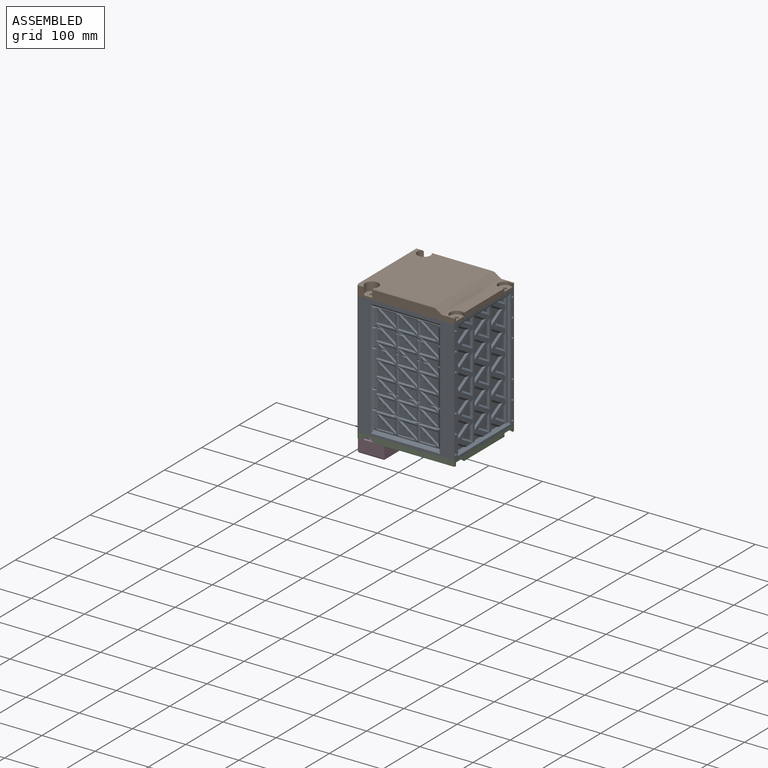
[diagram: assembled view]
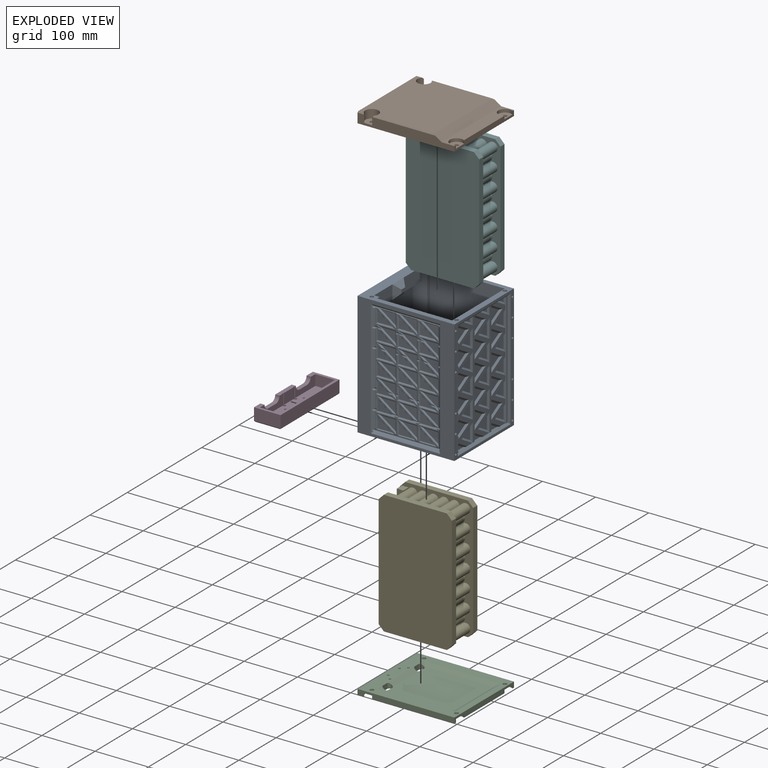
[diagram: exploded view]
GUIDED TOUR — FREECAD ASSEMBLY "BatteryMountPlate"

This assembly has 6 components, labeled P0..P5 below (a component is one placed body or linked part; the same part can appear more than once), held together by 0 modeled joints plus 7 derived contact edges. A joint is a constraint between two components; its type names the relative motion it leaves free:
  CONTACT — a derived adjacency edge — the two components touch in the source model (clearance under 2% of the assembly's diagonal); it is measured from the geometry, not a modeled constraint.
Axis/direction vectors are unit vectors and 'through' points are millimeter coordinates, both in the assembly's world frame.

MATES
  1. CONTACT "contact_0_1": P0 <-> P1, contact direction (0.000, 0.000, 1.000) through (-62.72, -2.28, 116.00) mm (derived from contact, not a modeled constraint)
  2. CONTACT "contact_0_2": P0 <-> P2, contact direction (0.000, 0.000, -1.000) through (97.85, 2.34, -116.00) mm (derived from contact, not a modeled constraint)
  3. CONTACT "contact_0_4": P0 <-> P4, contact direction (0.000, -1.000, 0.000) through (-48.75, 66.50, -106.05) mm (derived from contact, not a modeled constraint)
  4. CONTACT "contact_0_5": P0 <-> P5, contact direction (0.000, 1.000, 0.000) through (-47.25, 142.00, -104.55) mm (derived from contact, not a modeled constraint)
  5. CONTACT "contact_2_3": P2 <-> P3, contact direction (-1.000, 0.000, 0.000) through (-71.89, 144.09, -126.00) mm (derived from contact, not a modeled constraint)
  6. CONTACT "contact_2_4": P2 <-> P4, contact direction (0.000, 0.000, 1.000) through (82.17, 0.39, -118.00) mm (derived from contact, not a modeled constraint)
  7. CONTACT "contact_4_5": P4 <-> P5, contact direction (0.000, 1.000, 0.000) through (-47.50, 70.50, 106.10) mm (derived from contact, not a modeled constraint)

ASSEMBLY ORDER
  1. P0 — the base component [order verified]
  2. P5 [order verified]
  3. P4 [order verified]
  4. P2 [order verified]
  5. P3 [order verified]
  6. P1 [order verified]
Order-tag legend:
  [order verified] — this step's position reverses a verified removal order: the component was checked to insert without passing through the ones already placed.

Of the 6 components, 4 carry a construction recipe — the FreeCAD feature program (sketches with constraints, then the solid features that consume them) that regenerates the part from scratch, quoted from this document or from the linked companion document it references; the rest are supplied as boundary geometry only. The tour below walks the components in assembly order: each is shown spotlighted twice — in the assembled view, then in the exploded view, where a leader line traces a displaced component back to its assembled socket (components that stay in place when exploded have no leader line; saturated green if recipe-attached, orange if geometry-only; every other component desaturated gray) — followed by its recipe or geometry summary and the mates that hold it.
NOTE — this tour is split across 2 documents so each fits a 32k-token context. This is document 1: the component sections continue in the remaining 1 document, each repeating the header above.
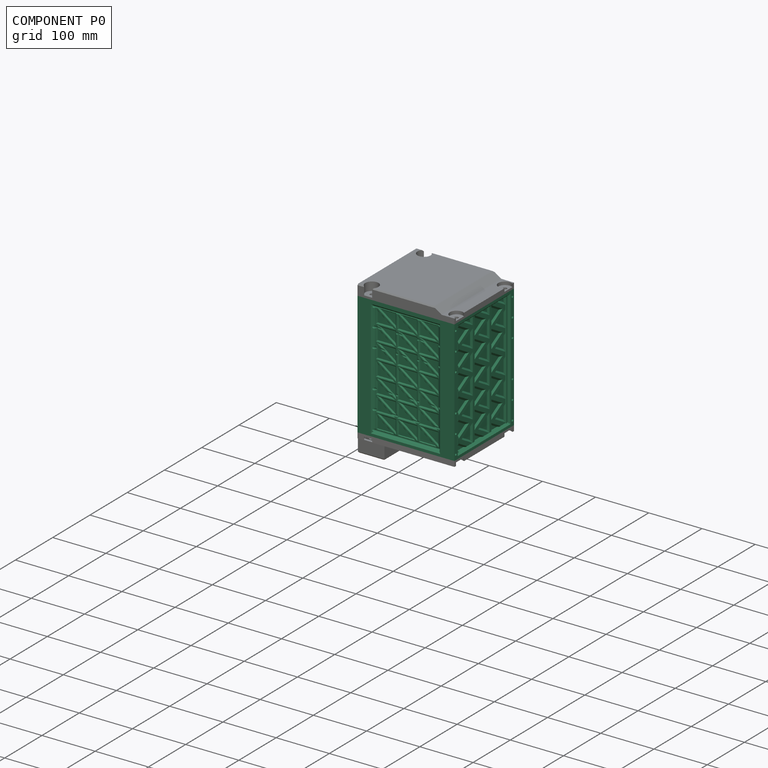
[diagram: component P0 — assembled]
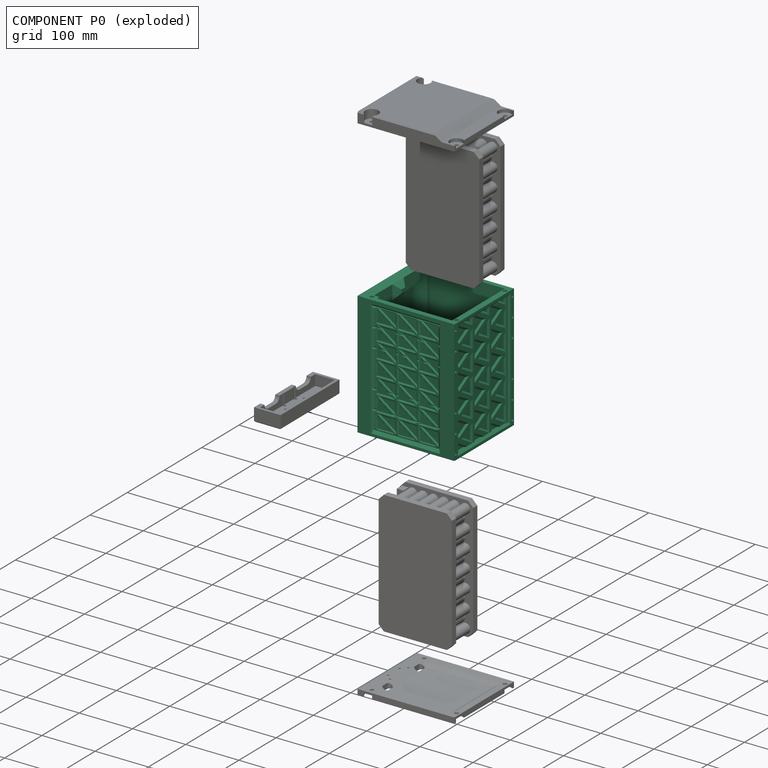
[diagram: component P0 — exploded]
COMPONENT P0 — recipe-attached ("ModuleBottomEnclosure", modeled in this document).
Held by: resting contact with P1 (derived edge); resting contact with P2 (derived edge); resting contact with P4 (derived edge); resting contact with P5 (derived edge).
Construction recipe (the document's own serialized feature program — sketch geometry with constraints, then the solid features built on it; lengths are millimeters unless a unit is written):

FEATURE [Sketcher::SketchObject] Sketch007
  ArcFitTolerance = 1e-06
  AttachmentSupport = -> [XY_Plane008]
  FullyConstrained = false
  MakeInternals = false
  MapMode = 5
  sketch-geometry (4):
    g0: LineSegment StartX=0 StartY=0 StartZ=0 EndX=182 EndY=0 EndZ=0
    g1: LineSegment StartX=182 StartY=0 StartZ=0 EndX=182 EndY=160 EndZ=0
    g2: LineSegment StartX=182 StartY=160 StartZ=0 EndX=0 EndY=160 EndZ=0
    g3: LineSegment StartX=0 StartY=160 StartZ=0 EndX=0 EndY=0 EndZ=0
  constraints (8):
    c: Coincident(g0,g1)
    c: Coincident(g1,g2)
    c: Coincident(g2,g3)
    c: Coincident(g3,g0)
    c: Horizontal(g0)
    c: Horizontal(g2)
    c: Vertical(g1)
    c: Vertical(g3)
FEATURE [PartDesign::Pad] Pad003
  Direction = (0,0,1)
  Length = 232
  Length2 = 10
  Profile = -> Sketch007
  ReferenceAxis = -> Sketch007 [N_Axis]
  Refine = true
  Suppressed = false
  Type = 0
FEATURE [Sketcher::SketchObject] Sketch008
  ArcFitTolerance = 1e-06
  AttachmentOffset = pos=(0,0,20) rot=(0,0,1;0rad)
  AttachmentSupport = -> [YZ_Plane008]
  FullyConstrained = false
  MakeInternals = false
  MapMode = 5
  Placement = pos=(20,0,0) rot=(0.57735,0.57735,0.57735;2.0944rad)
  sketch-geometry (8):
    g0: LineSegment StartX=95 StartY=0 StartZ=0 EndX=95 EndY=25 EndZ=0
    g1: LineSegment StartX=95 StartY=25 StartZ=0 EndX=65 EndY=25 EndZ=0
    g2: LineSegment StartX=65 StartY=25 StartZ=0 EndX=65 EndY=0 EndZ=0
    g3: LineSegment StartX=65 StartY=0 StartZ=0 EndX=95 EndY=0 EndZ=0
    g4: LineSegment StartX=95 StartY=205 StartZ=0 EndX=95 EndY=232 EndZ=0
    g5: LineSegment StartX=95 StartY=232 StartZ=0 EndX=65 EndY=232 EndZ=0
    g6: LineSegment StartX=65 StartY=232 StartZ=0 EndX=65 EndY=205 EndZ=0
    g7: LineSegment StartX=65 StartY=205 StartZ=0 EndX=95 EndY=205 EndZ=0
  constraints (16):
    c: Coincident(g0,g1)
    c: Coincident(g1,g2)
    c: Coincident(g2,g3)
    c: Coincident(g3,g0)
    c: Vertical(g0)
    c: Vertical(g2)
    c: Horizontal(g1)
    c: Horizontal(g3)
    c: Coincident(g4,g5)
    c: Coincident(g5,g6)
    c: Coincident(g6,g7)
    c: Coincident(g7,g4)
    c: Vertical(g4)
    c: Vertical(g6)
    c: Horizontal(g5)
    c: Horizontal(g7)
FEATURE [Sketcher::SketchObject] Sketch009
  ArcFitTolerance = 1e-06
  AttachmentSupport = -> [YZ_Plane008]
  FullyConstrained = false
  MakeInternals = false
  MapMode = 5
  Placement = pos=(0,0,0) rot=(0.57735,0.57735,0.57735;2.0944rad)
  sketch-geometry (8):
    g0: LineSegment StartX=10 StartY=232 StartZ=0 EndX=10 EndY=207 EndZ=0
    g1: LineSegment StartX=10 StartY=207 StartZ=0 EndX=150 EndY=207 EndZ=0
    g2: LineSegment StartX=150 StartY=207 StartZ=0 EndX=150 EndY=232 EndZ=0
    g3: LineSegment StartX=150 StartY=232 StartZ=0 EndX=10 EndY=232 EndZ=0
    g4: LineSegment StartX=151 StartY=0 StartZ=0 EndX=151 EndY=30 EndZ=0
    g5: LineSegment StartX=151 StartY=30 StartZ=0 EndX=10 EndY=30 EndZ=0
    g6: LineSegment StartX=10 StartY=30 StartZ=0 EndX=10 EndY=0 EndZ=0
    g7: LineSegment StartX=10 StartY=0 StartZ=0 EndX=151 EndY=0 EndZ=0
  constraints (16):
    c: Coincident(g0,g1)
    c: Coincident(g1,g2)
    c: Coincident(g2,g3)
    c: Coincident(g3,g0)
    c: Vertical(g0)
    c: Vertical(g2)
    c: Horizontal(g1)
    c: Horizontal(g3)
    c: Coincident(g4,g5)
    c: Coincident(g5,g6)
    c: Coincident(g6,g7)
    c: Coincident(g7,g4)
    c: Vertical(g4)
    c: Vertical(g6)
    c: Horizontal(g5)
    c: Horizontal(g7)
FEATURE [Sketcher::SketchObject] Sketch010
  ArcFitTolerance = 1e-06
  AttachmentSupport = -> [XY_Plane008]
  FullyConstrained = false
  MakeInternals = false
  MapMode = 5
  sketch-geometry (4):
    g0: Circle CenterX=20 CenterY=150 CenterZ=0 NormalX=0 NormalY=0 NormalZ=1 AngleXU=0 Radius=2.38649
    g1: Circle CenterX=20 CenterY=10 CenterZ=0 NormalX=0 NormalY=0 NormalZ=1 AngleXU=0 Radius=3.41984
    g2: Circle CenterX=175.5 CenterY=145 CenterZ=0 NormalX=0 NormalY=0 NormalZ=1 AngleXU=0 Radius=1.76253
    g3: Circle CenterX=175.5 CenterY=15 CenterZ=0 NormalX=0 NormalY=0 NormalZ=1 AngleXU=0 Radius=2.37061
FEATURE [Sketcher::SketchObject] Sketch011
  ArcFitTolerance = 1e-06
  AttachmentSupport = -> [YZ_Plane008]
  FullyConstrained = false
  MakeInternals = false
  MapMode = 5
  Placement = pos=(0,0,0) rot=(0.57735,0.57735,0.57735;2.0944rad)
  sketch-geometry (12):
    g0: Circle CenterX=156 CenterY=220 CenterZ=0 NormalX=0 NormalY=0 NormalZ=1 AngleXU=0 Radius=2.39766
    g1: Circle CenterX=156 CenterY=185 CenterZ=0 NormalX=0 NormalY=0 NormalZ=1 AngleXU=0 Radius=2.39766
    g2: Circle CenterX=156 CenterY=150 CenterZ=0 NormalX=0 NormalY=0 NormalZ=1 AngleXU=0 Radius=2.39766
    g3: Circle CenterX=156 CenterY=80 CenterZ=0 NormalX=0 NormalY=0 NormalZ=1 AngleXU=0 Radius=2.39766
    g4: Circle CenterX=156 CenterY=45 CenterZ=0 NormalX=0 NormalY=0 NormalZ=1 AngleXU=0 Radius=2.39766
    g5: Circle CenterX=156 CenterY=10 CenterZ=0 NormalX=0 NormalY=0 NormalZ=1 AngleXU=0 Radius=2.39766
    g6: Circle CenterX=4 CenterY=220 CenterZ=0 NormalX=0 NormalY=0 NormalZ=1 AngleXU=0 Radius=1.85567
    g7: Circle CenterX=4 CenterY=185 CenterZ=0 NormalX=0 NormalY=0 NormalZ=1 AngleXU=0 Radius=1.85567
    g8: Circle CenterX=4 CenterY=150 CenterZ=0 NormalX=0 NormalY=0 NormalZ=1 AngleXU=0 Radius=1.85567
    g9: Circle CenterX=4 CenterY=80 CenterZ=0 NormalX=0 NormalY=0 NormalZ=1 AngleXU=0 Radius=1.85567
    g10: Circle CenterX=4 CenterY=45 CenterZ=0 NormalX=0 NormalY=0 NormalZ=1 AngleXU=0 Radius=1.85567
    g11: Circle CenterX=4 CenterY=10 CenterZ=0 NormalX=0 NormalY=0 NormalZ=1 AngleXU=0 Radius=1.85567
FEATURE [Sketcher::SketchObject] Sketch015
  ArcFitTolerance = 1e-06
  AttachmentSupport = -> [XY_Plane008]
  FullyConstrained = false
  MakeInternals = false
  MapMode = 5
  sketch-geometry (8):
    g0: LineSegment StartX=171 StartY=151.4 StartZ=0 EndX=30 EndY=151.4 EndZ=0
    g1: LineSegment StartX=171 StartY=151.4 StartZ=0 EndX=171 EndY=9.7 EndZ=0
    g2: LineSegment StartX=171 StartY=9.7 StartZ=0 EndX=30 EndY=9.7 EndZ=0
    g3: LineSegment StartX=30 StartY=9.7 StartZ=0 EndX=30 EndY=16 EndZ=0
    g4: LineSegment StartX=30 StartY=151.4 StartZ=0 EndX=30 EndY=144 EndZ=0
    g5: LineSegment StartX=30 StartY=144 StartZ=0 EndX=3 EndY=144 EndZ=0
    g6: LineSegment StartX=3 StartY=144 StartZ=0 EndX=3 EndY=16 EndZ=0
    g7: LineSegment StartX=3 StartY=16 StartZ=0 EndX=30 EndY=16 EndZ=0
  constraints (16):
    c: Horizontal(g0)
    c: Coincident(g1,g0)
    c: Vertical(g1)
    c: Coincident(g2,g1)
    c: Horizontal(g2)
    c: Coincident(g3,g2)
    c: Vertical(g3)
    c: Coincident(g4,g0)
    c: Vertical(g4)
    c: Coincident(g5,g4)
    c: Horizontal(g5)
    c: Coincident(g6,g5)
    c: Vertical(g6)
    c: Coincident(g7,g6)
    c: Coincident(g7,g3)
    c: Horizontal(g7)
FEATURE [PartDesign::Pocket] Pocket001
  BaseFeature = -> Pad003
  Direction = (0,0,-1)
  Length = 300
  Length2 = 5
  Profile = -> Sketch015
  ReferenceAxis = -> Sketch015 [N_Axis]
  Refine = true
  Reversed = true
  Suppressed = false
  Type = 0
FEATURE [PartDesign::Pad] Pad004
  BaseFeature = -> Pocket001
  Direction = (1,0,0)
  Length = 20
  Length2 = 10
  Profile = -> Sketch009
  ReferenceAxis = -> Sketch009 [N_Axis]
  Refine = true
  Suppressed = false
  Type = 0
FEATURE [PartDesign::Pad] Pad005
  BaseFeature = -> Pad004
  Direction = (1,0,0)
  Length = 10
  Length2 = 10
  Profile = -> Sketch008
  ReferenceAxis = -> Sketch008 [N_Axis]
  Refine = true
  Suppressed = false
  TaperAngle = -45
  Type = 0
FEATURE [PartDesign::Hole] Hole003
  BaseFeature = -> Pad005
  CustomThreadClearance = 0
  Depth = 675.49
  DepthType = 1
  Diameter = 7.1
  DrillForDepth = false
  DrillPoint = 1
  DrillPointAngle = 118
  HoleCutCountersinkAngle = 90
  HoleCutCustomValues = false
  HoleCutDepth = 0
  HoleCutDiameter = 0
  HoleCutType = 0
  ModelThread = false
  Profile = -> Sketch010
  Refine = true
  Reversed = true
  Suppressed = false
  Tapered = false
  TaperedAngle = 90
  ThreadClass = 0
  ThreadDepth = 675.49
  ThreadDepthType = 0
  ThreadDirection = 0
  ThreadFit = 0
  ThreadSize = 9
  ThreadType = 3
  Threaded = false
  UseCustomThreadClearance = false
FEATURE [PartDesign::Hole] Hole004
  BaseFeature = -> Hole003
  CustomThreadClearance = 0
  Depth = 686.574
  DepthType = 1
  Diameter = 4.5
  DrillForDepth = false
  DrillPoint = 1
  DrillPointAngle = 118
  HoleCutCountersinkAngle = 90
  HoleCutCustomValues = false
  HoleCutDepth = 0
  HoleCutDiameter = 6.1
  HoleCutType = 0
  ModelThread = false
  Profile = -> Sketch011
  Refine = true
  Reversed = true
  Suppressed = false
  Tapered = false
  TaperedAngle = 90
  ThreadClass = 0
  ThreadDepth = 686.574
  ThreadDepthType = 0
  ThreadDirection = 0
  ThreadFit = 0
  ThreadSize = 8
  ThreadType = 3
  Threaded = true
  UseCustomThreadClearance = false
FEATURE [Sketcher::SketchObject] Sketch026
  ArcFitTolerance = 1e-06
  AttachmentOffset = pos=(0,0,178) rot=(0,0,1;0rad)
  AttachmentSupport = -> [YZ_Plane008]
  FullyConstrained = false
  MakeInternals = false
  MapMode = 5
  Placement = pos=(178,0,0) rot=(0.57735,0.57735,0.57735;2.0944rad)
  sketch-geometry (138):
    g0: Circle [constr] CenterX=35 CenterY=206 CenterZ=0 NormalX=0 NormalY=0 NormalZ=1 AngleXU=0 Radius=20
    g1: LineSegment StartX=45 StartY=206 StartZ=0 EndX=15 EndY=223.321 EndZ=0
    g2: LineSegment StartX=15 StartY=223.321 StartZ=0 EndX=15 EndY=188.679 EndZ=0
    g3: LineSegment StartX=15 StartY=188.679 StartZ=0 EndX=45 EndY=206 EndZ=0
    g4: Circle [constr] CenterX=35 CenterY=166 CenterZ=0 NormalX=0 NormalY=0 NormalZ=1 AngleXU=0 Radius=20
    g5: LineSegment StartX=45 StartY=166 StartZ=0 EndX=15 EndY=183.321 EndZ=0
    g6: LineSegment StartX=15 StartY=183.321 StartZ=0 EndX=15 EndY=148.679 EndZ=0
    g7: LineSegment StartX=15 StartY=148.679 StartZ=0 EndX=45 EndY=166 EndZ=0
    g8: LineSegment StartX=25 StartY=186 StartZ=0 EndX=55 EndY=168.679 EndZ=0
    g9: LineSegment StartX=55 StartY=168.679 StartZ=0 EndX=55 EndY=203.321 EndZ=0
    g10: LineSegment StartX=55 StartY=203.321 StartZ=0 EndX=25 EndY=186 EndZ=0
    g11: Circle [constr] CenterX=45 CenterY=186 CenterZ=0 NormalX=0 NormalY=0 NormalZ=1 AngleXU=0 Radius=20
    g12: LineSegment StartX=25 StartY=146 StartZ=0 EndX=55 EndY=128.679 EndZ=0
    g13: LineSegment StartX=55 StartY=128.679 StartZ=0 EndX=55 EndY=163.321 EndZ=0
    g14: LineSegment StartX=55 StartY=163.321 StartZ=0 EndX=25 EndY=146 EndZ=0
    g15: Circle [constr] CenterX=45 CenterY=146 CenterZ=0 NormalX=0 NormalY=0 NormalZ=1 AngleXU=0 Radius=20
    g16: Circle [constr] CenterX=35 CenterY=126 CenterZ=0 NormalX=0 NormalY=0 NormalZ=1 AngleXU=0 Radius=20
    g17: LineSegment StartX=45 StartY=126 StartZ=0 EndX=15 EndY=143.321 EndZ=0
    g18: LineSegment StartX=15 StartY=143.321 StartZ=0 EndX=15 EndY=108.679 EndZ=0
    g19: LineSegment StartX=15 StartY=108.679 StartZ=0 EndX=45 EndY=126 EndZ=0
    g20: Circle [constr] CenterX=35 CenterY=86 CenterZ=0 NormalX=0 NormalY=0 NormalZ=1 AngleXU=0 Radius=20
    g21: LineSegment StartX=45 StartY=86 StartZ=0 EndX=15 EndY=103.321 EndZ=0
    g22: LineSegment StartX=15 StartY=103.321 StartZ=0 EndX=15 EndY=68.6795 EndZ=0
    g23: LineSegment StartX=15 StartY=68.6795 StartZ=0 EndX=45 EndY=86 EndZ=0
    g24: LineSegment StartX=25 StartY=106 StartZ=0 EndX=55 EndY=88.6795 EndZ=0
    g25: LineSegment StartX=55 StartY=88.6795 StartZ=0 EndX=55 EndY=123.321 EndZ=0
    g26: LineSegment StartX=55 StartY=123.321 StartZ=0 EndX=25 EndY=106 EndZ=0
    g27: Circle [constr] CenterX=45 CenterY=106 CenterZ=0 NormalX=0 NormalY=0 NormalZ=1 AngleXU=0 Radius=20
    g28: LineSegment StartX=25 StartY=66 StartZ=0 EndX=55 EndY=48.6795 EndZ=0
    g29: LineSegment StartX=55 StartY=48.6795 StartZ=0 EndX=55 EndY=83.3205 EndZ=0
    g30: LineSegment StartX=55 StartY=83.3205 StartZ=0 EndX=25 EndY=66 EndZ=0
    g31: Circle [constr] CenterX=45 CenterY=66 CenterZ=0 NormalX=0 NormalY=0 NormalZ=1 AngleXU=0 Radius=20
    g32: Circle [constr] CenterX=35 CenterY=46 CenterZ=0 NormalX=0 NormalY=0 NormalZ=1 AngleXU=0 Radius=20
    g33: LineSegment StartX=45 StartY=46 StartZ=0 EndX=15 EndY=63.3205 EndZ=0
    g34: LineSegment StartX=15 StartY=63.3205 StartZ=0 EndX=15 EndY=28.6795 EndZ=0
    g35: LineSegment StartX=15 StartY=28.6795 StartZ=0 EndX=45 EndY=46 EndZ=0
    g36: LineSegment StartX=55 StartY=43.3205 StartZ=0 EndX=25 EndY=26 EndZ=0
    g37: LineSegment StartX=55 StartY=8.67949 StartZ=0 EndX=55 EndY=43.3205 EndZ=0
    g38: LineSegment StartX=25 StartY=26 StartZ=0 EndX=55 EndY=8.67949 EndZ=0
    g39: Circle [constr] CenterX=45 CenterY=26 CenterZ=0 NormalX=0 NormalY=0 NormalZ=1 AngleXU=0 Radius=20
    g40: Circle [constr] CenterX=80 CenterY=206 CenterZ=0 NormalX=0 NormalY=0 NormalZ=1 AngleXU=0 Radius=20
    g41: LineSegment StartX=90 StartY=206 StartZ=0 EndX=60 EndY=223.321 EndZ=0
    g42: LineSegment StartX=60 StartY=223.321 StartZ=0 EndX=60 EndY=188.679 EndZ=0
    g43: LineSegment StartX=60 StartY=188.679 StartZ=0 EndX=90 EndY=206 EndZ=0
    g44: Circle [constr] CenterX=80 CenterY=166 CenterZ=0 NormalX=0 NormalY=0 NormalZ=1 AngleXU=0 Radius=20
    g45: LineSegment StartX=90 StartY=166 StartZ=0 EndX=60 EndY=183.321 EndZ=0
    g46: LineSegment StartX=60 StartY=183.321 StartZ=0 EndX=60 EndY=148.679 EndZ=0
    g47: LineSegment StartX=60 StartY=148.679 StartZ=0 EndX=90 EndY=166 EndZ=0
    g48: LineSegment StartX=70 StartY=186 StartZ=0 EndX=100 EndY=168.679 EndZ=0
    g49: LineSegment StartX=100 StartY=168.679 StartZ=0 EndX=100 EndY=203.321 EndZ=0
    g50: LineSegment StartX=100 StartY=203.321 StartZ=0 EndX=70 EndY=186 EndZ=0
    g51: Circle [constr] CenterX=90 CenterY=186 CenterZ=0 NormalX=0 NormalY=0 NormalZ=1 AngleXU=0 Radius=20
    g52: LineSegment StartX=70 StartY=146 StartZ=0 EndX=100 EndY=128.679 EndZ=0
    g53: LineSegment StartX=100 StartY=128.679 StartZ=0 EndX=100 EndY=163.321 EndZ=0
    g54: LineSegment StartX=100 StartY=163.321 StartZ=0 EndX=70 EndY=146 EndZ=0
    g55: Circle [constr] CenterX=90 CenterY=146 CenterZ=0 NormalX=0 NormalY=0 NormalZ=1 AngleXU=0 Radius=20
    g56: Circle [constr] CenterX=80 CenterY=126 CenterZ=0 NormalX=0 NormalY=0 NormalZ=1 AngleXU=0 Radius=20
    g57: LineSegment StartX=90 StartY=126 StartZ=0 EndX=60 EndY=143.321 EndZ=0
    g58: LineSegment StartX=60 StartY=143.321 StartZ=0 EndX=60 EndY=108.679 EndZ=0
    g59: LineSegment StartX=60 StartY=108.679 StartZ=0 EndX=90 EndY=126 EndZ=0
    g60: Circle [constr] CenterX=80 CenterY=86 CenterZ=0 NormalX=0 NormalY=0 NormalZ=1 AngleXU=0 Radius=20
    g61: LineSegment StartX=90 StartY=86 StartZ=0 EndX=60 EndY=103.321 EndZ=0
    g62: LineSegment StartX=60 StartY=103.321 StartZ=0 EndX=60 EndY=68.6795 EndZ=0
    g63: LineSegment StartX=60 StartY=68.6795 StartZ=0 EndX=90 EndY=86 EndZ=0
    g64: LineSegment StartX=70 StartY=106 StartZ=0 EndX=100 EndY=88.6795 EndZ=0
    g65: LineSegment StartX=100 StartY=88.6795 StartZ=0 EndX=100 EndY=123.321 EndZ=0
    g66: LineSegment StartX=100 StartY=123.321 StartZ=0 EndX=70 EndY=106 EndZ=0
    g67: Circle [constr] CenterX=90 CenterY=106 CenterZ=0 NormalX=0 NormalY=0 NormalZ=1 AngleXU=0 Radius=20
    g68: LineSegment StartX=70 StartY=66 StartZ=0 EndX=100 EndY=48.6795 EndZ=0
    g69: LineSegment StartX=100 StartY=48.6795 StartZ=0 EndX=100 EndY=83.3205 EndZ=0
    g70: LineSegment StartX=100 StartY=83.3205 StartZ=0 EndX=70 EndY=66 EndZ=0
    g71: Circle [constr] CenterX=90 CenterY=66 CenterZ=0 NormalX=0 NormalY=0 NormalZ=1 AngleXU=0 Radius=20
    g72: Circle [constr] CenterX=80 CenterY=46 CenterZ=0 NormalX=0 NormalY=0 NormalZ=1 AngleXU=0 Radius=20
    g73: LineSegment StartX=90 StartY=46 StartZ=0 EndX=60 EndY=63.3205 EndZ=0
    g74: LineSegment StartX=60 StartY=63.3205 StartZ=0 EndX=60 EndY=28.6795 EndZ=0
    g75: LineSegment StartX=60 StartY=28.6795 StartZ=0 EndX=90 EndY=46 EndZ=0
    g76: LineSegment StartX=100 StartY=43.3205 StartZ=0 EndX=70 EndY=26 EndZ=0
    g77: LineSegment StartX=100 StartY=8.67949 StartZ=0 EndX=100 EndY=43.3205 EndZ=0
    g78: LineSegment StartX=70 StartY=26 StartZ=0 EndX=100 EndY=8.67949 EndZ=0
    g79: Circle [constr] CenterX=90 CenterY=26 CenterZ=0 NormalX=0 NormalY=0 NormalZ=1 AngleXU=0 Radius=20
    g80: Circle [constr] CenterX=125 CenterY=206 CenterZ=0 NormalX=0 NormalY=0 NormalZ=1 AngleXU=0 Radius=20
    g81: LineSegment StartX=135 StartY=206 StartZ=0 EndX=105 EndY=223.321 EndZ=0
    g82: LineSegment StartX=105 StartY=223.321 StartZ=0 EndX=105 EndY=188.679 EndZ=0
    g83: LineSegment StartX=105 StartY=188.679 StartZ=0 EndX=135 EndY=206 EndZ=0
    g84: Circle [constr] CenterX=125 CenterY=166 CenterZ=0 NormalX=0 NormalY=0 NormalZ=1 AngleXU=0 Radius=20
    g85: LineSegment StartX=135 StartY=166 StartZ=0 EndX=105 EndY=183.321 EndZ=0
    g86: LineSegment StartX=105 StartY=183.321 StartZ=0 EndX=105 EndY=148.679 EndZ=0
    g87: LineSegment StartX=105 StartY=148.679 StartZ=0 EndX=135 EndY=166 EndZ=0
    g88: LineSegment StartX=115 StartY=186 StartZ=0 EndX=145 EndY=168.679 EndZ=0
    g89: LineSegment StartX=145 StartY=168.679 StartZ=0 EndX=145 EndY=203.321 EndZ=0
    g90: LineSegment StartX=145 StartY=203.321 StartZ=0 EndX=115 EndY=186 EndZ=0
    g91: Circle [constr] CenterX=135 CenterY=186 CenterZ=0 NormalX=0 NormalY=0 NormalZ=1 AngleXU=0 Radius=20
    g92: LineSegment StartX=115 StartY=146 StartZ=0 EndX=145 EndY=128.679 EndZ=0
    g93: LineSegment StartX=145 StartY=128.679 StartZ=0 EndX=145 EndY=163.321 EndZ=0
    g94: LineSegment StartX=145 StartY=163.321 StartZ=0 EndX=115 EndY=146 EndZ=0
    g95: Circle [constr] CenterX=135 CenterY=146 CenterZ=0 NormalX=0 NormalY=0 NormalZ=1 AngleXU=0 Radius=20
    g96: Circle [constr] CenterX=125 CenterY=126 CenterZ=0 NormalX=0 NormalY=0 NormalZ=1 AngleXU=0 Radius=20
    g97: LineSegment StartX=135 StartY=126 StartZ=0 EndX=105 EndY=143.321 EndZ=0
    g98: LineSegment StartX=105 StartY=143.321 StartZ=0 EndX=105 EndY=108.679 EndZ=0
    g99: LineSegment StartX=105 StartY=108.679 StartZ=0 EndX=135 EndY=126 EndZ=0
    g100: Circle [constr] CenterX=125 CenterY=86 CenterZ=0 NormalX=0 NormalY=0 NormalZ=1 AngleXU=0 Radius=20
    g101: LineSegment StartX=135 StartY=86 StartZ=0 EndX=105 EndY=103.321 EndZ=0
    g102: LineSegment StartX=105 StartY=103.321 StartZ=0 EndX=105 EndY=68.6795 EndZ=0
    g103: LineSegment StartX=105 StartY=68.6795 StartZ=0 EndX=135 EndY=86 EndZ=0
    g104: LineSegment StartX=115 StartY=106 StartZ=0 EndX=145 EndY=88.6795 EndZ=0
    g105: LineSegment StartX=145 StartY=88.6795 StartZ=0 EndX=145 EndY=123.321 EndZ=0
    g106: LineSegment StartX=145 StartY=123.321 StartZ=0 EndX=115 EndY=106 EndZ=0
    g107: Circle [constr] CenterX=135 CenterY=106 CenterZ=0 NormalX=0 NormalY=0 NormalZ=1 AngleXU=0 Radius=20
    g108: LineSegment StartX=115 StartY=66 StartZ=0 EndX=145 EndY=48.6795 EndZ=0
    g109: LineSegment StartX=145 StartY=48.6795 StartZ=0 EndX=145 EndY=83.3205 EndZ=0
    g110: LineSegment StartX=145 StartY=83.3205 StartZ=0 EndX=115 EndY=66 EndZ=0
    g111: Circle [constr] CenterX=135 CenterY=66 CenterZ=0 NormalX=0 NormalY=0 NormalZ=1 AngleXU=0 Radius=20
    g112: Circle [constr] CenterX=125 CenterY=46 CenterZ=0 NormalX=0 NormalY=0 NormalZ=1 AngleXU=0 Radius=20
    g113: LineSegment StartX=135 StartY=46 StartZ=0 EndX=105 EndY=63.3205 EndZ=0
    g114: LineSegment StartX=105 StartY=63.3205 StartZ=0 EndX=105 EndY=28.6795 EndZ=0
    g115: LineSegment StartX=105 StartY=28.6795 StartZ=0 EndX=135 EndY=46 EndZ=0
    g116: LineSegment StartX=145 StartY=43.3205 StartZ=0 EndX=115 EndY=26 EndZ=0
    g117: LineSegment StartX=145 StartY=8.67949 StartZ=0 EndX=145 EndY=43.3205 EndZ=0
    g118: LineSegment StartX=115 StartY=26 StartZ=0 EndX=145 EndY=8.67949 EndZ=0
    g119: Circle [constr] CenterX=135 CenterY=26 CenterZ=0 NormalX=0 NormalY=0 NormalZ=1 AngleXU=0 Radius=20
    g120: LineSegment StartX=55 StartY=226 StartZ=0 EndX=25 EndY=226 EndZ=0
    g121: LineSegment StartX=100 StartY=226 StartZ=0 EndX=70 EndY=226 EndZ=0
    g122: LineSegment StartX=145 StartY=226 StartZ=0 EndX=115 EndY=226 EndZ=0
    g123: LineSegment StartX=25 StartY=226 StartZ=0 EndX=55 EndY=208.679 EndZ=0
    g124: LineSegment StartX=55 StartY=208.679 StartZ=0 EndX=55 EndY=226 EndZ=0
    g125: LineSegment StartX=70 StartY=226 StartZ=0 EndX=100 EndY=208.679 EndZ=0
    g126: LineSegment StartX=100 StartY=208.679 StartZ=0 EndX=100 EndY=226 EndZ=0
    g127: LineSegment StartX=115 StartY=226 StartZ=0 EndX=145 EndY=208.679 EndZ=0
    g128: LineSegment StartX=145 StartY=208.679 StartZ=0 EndX=145 EndY=226 EndZ=0
    g129: LineSegment StartX=90 StartY=6 StartZ=0 EndX=60 EndY=23.3205 EndZ=0
    g130: LineSegment StartX=60 StartY=6 StartZ=0 EndX=90 EndY=6 EndZ=0
    g131: LineSegment StartX=60 StartY=23.3205 StartZ=0 EndX=60 EndY=6 EndZ=0
    g132: LineSegment StartX=15 StartY=6 StartZ=0 EndX=45 EndY=6 EndZ=0
    g133: LineSegment StartX=45 StartY=6 StartZ=0 EndX=15 EndY=23.3205 EndZ=0
    g134: LineSegment StartX=15 StartY=23.3205 StartZ=0 EndX=15 EndY=6 EndZ=0
    g135: LineSegment StartX=105 StartY=23.3205 StartZ=0 EndX=105 EndY=6 EndZ=0
    g136: LineSegment StartX=105 StartY=6 StartZ=0 EndX=135 EndY=6 EndZ=0
    g137: LineSegment StartX=135 StartY=6 StartZ=0 EndX=105 EndY=23.3205 EndZ=0
  constraints (213):
    c: Coincident(g1,g2)
    c: Coincident(g2,g3)
    c: Coincident(g3,g1)
    c: Equal(g1,g2)
    c: Equal(g1,g3)
    c: Coincident(g5,g6)
    c: Coincident(g6,g7)
    c: Coincident(g7,g5)
    c: Equal(g5,g6)
    c: Equal(g5,g7)
    c: Coincident(g8,g9)
    c: Coincident(g9,g10)
    c: Coincident(g10,g8)
    c: Equal(g8,g9)
    c: Equal(g8,g10)
    c: PointOnObject(g8,g11)
    c: PointOnObject(g9,g11)
    c: PointOnObject(g10,g11)
    c: Coincident(g12,g13)
    c: Coincident(g13,g14)
    c: Coincident(g14,g12)
    c: Equal(g12,g13)
    c: Equal(g12,g14)
    c: PointOnObject(g12,g15)
    c: PointOnObject(g13,g15)
    c: PointOnObject(g14,g15)
    c: Coincident(g17,g18)
    c: Coincident(g18,g19)
    c: Coincident(g19,g17)
    c: Equal(g17,g18)
    c: Equal(g17,g19)
    c: Coincident(g21,g22)
    c: Coincident(g22,g23)
    c: Coincident(g23,g21)
    c: Equal(g21,g22)
    c: Equal(g21,g23)
    c: Coincident(g24,g25)
    c: Coincident(g25,g26)
    c: Coincident(g26,g24)
    c: Equal(g24,g25)
    c: Equal(g24,g26)
    c: PointOnObject(g24,g27)
    c: PointOnObject(g25,g27)
    c: PointOnObject(g26,g27)
    c: Coincident(g28,g29)
    c: Coincident(g29,g30)
    c: Coincident(g30,g28)
    c: Equal(g28,g29)
    c: Equal(g28,g30)
    c: PointOnObject(g28,g31)
    c: PointOnObject(g29,g31)
    c: PointOnObject(g30,g31)
    c: Coincident(g33,g34)
    c: Coincident(g34,g35)
    c: Coincident(g35,g33)
    c: Equal(g33,g34)
    c: Equal(g33,g35)
    c: Coincident(g38,g37)
    c: Coincident(g37,g36)
    c: Coincident(g36,g38)
    c: Equal(g38,g37)
    c: Equal(g38,g36)
    c: PointOnObject(g38,g39)
    c: PointOnObject(g37,g39)
    c: PointOnObject(g36,g39)
    c: Coincident(g41,g42)
    c: Coincident(g42,g43)
    c: Coincident(g43,g41)
    c: Equal(g41,g42)
    c: Equal(g41,g43)
    c: Coincident(g45,g46)
    c: Coincident(g46,g47)
    c: Coincident(g47,g45)
    c: Equal(g45,g46)
    c: Equal(g45,g47)
    c: Coincident(g48,g49)
    c: Coincident(g49,g50)
    c: Coincident(g50,g48)
    c: Equal(g48,g49)
    c: Equal(g48,g50)
    c: PointOnObject(g48,g51)
    c: PointOnObject(g49,g51)
    c: PointOnObject(g50,g51)
    c: Coincident(g52,g53)
    c: Coincident(g53,g54)
    c: Coincident(g54,g52)
    c: Equal(g52,g53)
    c: Equal(g52,g54)
    c: PointOnObject(g52,g55)
    c: PointOnObject(g53,g55)
    c: PointOnObject(g54,g55)
    c: Coincident(g57,g58)
    c: Coincident(g58,g59)
    c: Coincident(g59,g57)
    c: Equal(g57,g58)
    c: Equal(g57,g59)
    c: Coincident(g61,g62)
    c: Coincident(g62,g63)
    c: Coincident(g63,g61)
    c: Equal(g61,g62)
    c: Equal(g61,g63)
    c: Coincident(g64,g65)
    c: Coincident(g65,g66)
    c: Coincident(g66,g64)
    c: Equal(g64,g65)
    c: Equal(g64,g66)
    c: PointOnObject(g64,g67)
    c: PointOnObject(g65,g67)
    c: PointOnObject(g66,g67)
    c: Coincident(g68,g69)
    c: Coincident(g69,g70)
    c: Coincident(g70,g68)
    c: Equal(g68,g69)
    c: Equal(g68,g70)
    c: PointOnObject(g68,g71)
    c: PointOnObject(g69,g71)
    c: PointOnObject(g70,g71)
    c: Coincident(g73,g74)
    c: Coincident(g74,g75)
    c: Coincident(g75,g73)
    c: Equal(g73,g74)
    c: Equal(g73,g75)
    c: Coincident(g78,g77)
    c: Coincident(g77,g76)
    c: Coincident(g76,g78)
    c: Equal(g78,g77)
    c: Equal(g78,g76)
    c: PointOnObject(g78,g79)
    c: PointOnObject(g77,g79)
    c: PointOnObject(g76,g79)
    c: Coincident(g81,g82)
    c: Coincident(g82,g83)
    c: Coincident(g83,g81)
    c: Equal(g81,g82)
    c: Equal(g81,g83)
    c: Coincident(g85,g86)
    c: Coincident(g86,g87)
    c: Coincident(g87,g85)
    c: Equal(g85,g86)
    c: Equal(g85,g87)
    c: Coincident(g88,g89)
    c: Coincident(g89,g90)
    c: Coincident(g90,g88)
    c: Equal(g88,g89)
    c: Equal(g88,g90)
    c: PointOnObject(g88,g91)
    c: PointOnObject(g89,g91)
    c: PointOnObject(g90,g91)
    c: Coincident(g92,g93)
    c: Coincident(g93,g94)
    c: Coincident(g94,g92)
    c: Equal(g92,g93)
    c: Equal(g92,g94)
    c: PointOnObject(g92,g95)
    c: PointOnObject(g93,g95)
    c: PointOnObject(g94,g95)
    c: Coincident(g97,g98)
    c: Coincident(g98,g99)
    c: Coincident(g99,g97)
    c: Equal(g97,g98)
    c: Equal(g97,g99)
    c: Coincident(g101,g102)
    c: Coincident(g102,g103)
    c: Coincident(g103,g101)
    c: Equal(g101,g102)
    c: Equal(g101,g103)
    c: Coincident(g104,g105)
    c: Coincident(g105,g106)
    c: Coincident(g106,g104)
    c: Equal(g104,g105)
    c: Equal(g104,g106)
    c: PointOnObject(g104,g107)
    c: PointOnObject(g105,g107)
    c: PointOnObject(g106,g107)
    c: Coincident(g108,g109)
    c: Coincident(g109,g110)
    c: Coincident(g110,g108)
    c: Equal(g108,g109)
    c: Equal(g108,g110)
    c: PointOnObject(g108,g111)
    c: PointOnObject(g109,g111)
    c: PointOnObject(g110,g111)
    c: Coincident(g113,g114)
    c: Coincident(g114,g115)
    c: Coincident(g115,g113)
    c: Equal(g113,g114)
    c: Equal(g113,g115)
    c: Coincident(g118,g117)
    c: Coincident(g117,g116)
    c: Coincident(g116,g118)
    c: Equal(g118,g117)
    c: Equal(g118,g116)
    c: PointOnObject(g118,g119)
    c: PointOnObject(g117,g119)
    c: PointOnObject(g116,g119)
    c: Coincident(g123,g124)
    c: Coincident(g124,g120)
    c: Coincident(g120,g123)
    c: Coincident(g125,g126)
    c: Coincident(g126,g121)
    c: Coincident(g121,g125)
    c: Coincident(g127,g128)
    c: Coincident(g128,g122)
    c: Coincident(g122,g127)
    c: Coincident(g133,g134)
    c: Coincident(g134,g132)
    c: Coincident(g132,g133)
    c: Coincident(g129,g131)
    c: Coincident(g131,g130)
    c: Coincident(g130,g129)
    c: Coincident(g137,g135)
    c: Coincident(g135,g136)
    c: Coincident(g136,g137)
FEATURE [PartDesign::Pocket] Pocket008
  BaseFeature = -> Hole004
  Direction = (-1,0,0)
  Length = 3
  Length2 = 5
  Profile = -> Sketch026
  ReferenceAxis = -> Sketch026 [N_Axis]
  Refine = true
  Suppressed = false
  TaperAngle = -45
  Type = 0
FEATURE [Sketcher::SketchObject] Sketch027
  ArcFitTolerance = 1e-06
  AttachmentOffset = pos=(0,0,183) rot=(0,0,1;0rad)
  AttachmentSupport = -> [YZ_Plane008]
  FullyConstrained = false
  MakeInternals = false
  MapMode = 5
  Placement = pos=(183,0,0) rot=(0.57735,0.57735,0.57735;2.0944rad)
  sketch-geometry (4):
    g0: LineSegment StartX=8 StartY=228 StartZ=0 EndX=8 EndY=4 EndZ=0
    g1: LineSegment StartX=8 StartY=4 StartZ=0 EndX=152 EndY=4 EndZ=0
    g2: LineSegment StartX=152 StartY=4 StartZ=0 EndX=152 EndY=228 EndZ=0
    g3: LineSegment StartX=152 StartY=228 StartZ=0 EndX=8 EndY=228 EndZ=0
  constraints (8):
    c: Coincident(g0,g1)
    c: Coincident(g1,g2)
    c: Coincident(g2,g3)
    c: Coincident(g3,g0)
    c: Vertical(g0)
    c: Vertical(g2)
    c: Horizontal(g1)
    c: Horizontal(g3)
FEATURE [PartDesign::Pocket] Pocket009
  BaseFeature = -> Pocket008
  Direction = (-1,0,0)
  Length = 5
  Length2 = 5
  Profile = -> Sketch027
  ReferenceAxis = -> Sketch027 [N_Axis]
  Refine = true
  Suppressed = false
  TaperAngle = -45
  Type = 0
FEATURE [Sketcher::SketchObject] Sketch028
  ArcFitTolerance = 1e-06
  AttachmentOffset = pos=(10,0,-5) rot=(0,0,1;0rad)
  AttachmentSupport = -> [XZ_Plane008]
  FullyConstrained = false
  MakeInternals = false
  MapMode = 5
  Placement = pos=(10,5,-1.1e-15) rot=(1,0,0;1.5708rad)
  sketch-geometry (126):
    g0: LineSegment StartX=23 StartY=219 StartZ=0 EndX=59 EndY=219 EndZ=0
    g1: LineSegment StartX=59 StartY=219 StartZ=0 EndX=59 EndY=193 EndZ=0
    g2: LineSegment StartX=59 StartY=193 StartZ=0 EndX=23 EndY=219 EndZ=0
    g3: LineSegment StartX=57 StartY=191 StartZ=0 EndX=21 EndY=191 EndZ=0
    g4: LineSegment StartX=21 StartY=191 StartZ=0 EndX=21 EndY=217 EndZ=0
    g5: LineSegment StartX=21 StartY=217 StartZ=0 EndX=57 EndY=191 EndZ=0
    g6: LineSegment StartX=63 StartY=219 StartZ=0 EndX=99 EndY=219 EndZ=0
    g7: LineSegment StartX=99 StartY=219 StartZ=0 EndX=99 EndY=193 EndZ=0
    g8: LineSegment StartX=99 StartY=193 StartZ=0 EndX=63 EndY=219 EndZ=0
    g9: LineSegment StartX=97 StartY=191 StartZ=0 EndX=61 EndY=191 EndZ=0
    g10: LineSegment StartX=61 StartY=191 StartZ=0 EndX=61 EndY=217 EndZ=0
    g11: LineSegment StartX=61 StartY=217 StartZ=0 EndX=97 EndY=191 EndZ=0
    g12: LineSegment StartX=103 StartY=219 StartZ=0 EndX=139 EndY=219 EndZ=0
    g13: LineSegment StartX=139 StartY=219 StartZ=0 EndX=139 EndY=193 EndZ=0
    g14: LineSegment StartX=139 StartY=193 StartZ=0 EndX=103 EndY=219 EndZ=0
    g15: LineSegment StartX=137 StartY=191 StartZ=0 EndX=101 EndY=191 EndZ=0
    g16: LineSegment StartX=101 StartY=191 StartZ=0 EndX=101 EndY=217 EndZ=0
    g17: LineSegment StartX=101 StartY=217 StartZ=0 EndX=137 EndY=191 EndZ=0
    g18: LineSegment StartX=23 StartY=189 StartZ=0 EndX=59 EndY=189 EndZ=0
    g19: LineSegment StartX=59 StartY=189 StartZ=0 EndX=59 EndY=163 EndZ=0
    g20: LineSegment StartX=59 StartY=163 StartZ=0 EndX=23 EndY=189 EndZ=0
    g21: LineSegment StartX=57 StartY=161 StartZ=0 EndX=21 EndY=161 EndZ=0
    g22: LineSegment StartX=21 StartY=161 StartZ=0 EndX=21 EndY=187 EndZ=0
    g23: LineSegment StartX=21 StartY=187 StartZ=0 EndX=57 EndY=161 EndZ=0
    g24: LineSegment StartX=63 StartY=189 StartZ=0 EndX=99 EndY=189 EndZ=0
    g25: LineSegment StartX=99 StartY=189 StartZ=0 EndX=99 EndY=163 EndZ=0
    g26: LineSegment StartX=99 StartY=163 StartZ=0 EndX=63 EndY=189 EndZ=0
    g27: LineSegment StartX=97 StartY=161 StartZ=0 EndX=61 EndY=161 EndZ=0
    g28: LineSegment StartX=61 StartY=161 StartZ=0 EndX=61 EndY=187 EndZ=0
    g29: LineSegment StartX=61 StartY=187 StartZ=0 EndX=97 EndY=161 EndZ=0
    g30: LineSegment StartX=103 StartY=189 StartZ=0 EndX=139 EndY=189 EndZ=0
    g31: LineSegment StartX=139 StartY=189 StartZ=0 EndX=139 EndY=163 EndZ=0
    g32: LineSegment StartX=139 StartY=163 StartZ=0 EndX=103 EndY=189 EndZ=0
    g33: LineSegment StartX=137 StartY=161 StartZ=0 EndX=101 EndY=161 EndZ=0
    g34: LineSegment StartX=101 StartY=161 StartZ=0 EndX=101 EndY=187 EndZ=0
    g35: LineSegment StartX=101 StartY=187 StartZ=0 EndX=137 EndY=161 EndZ=0
    g36: LineSegment StartX=23 StartY=159 StartZ=0 EndX=59 EndY=159 EndZ=0
    g37: LineSegment StartX=59 StartY=159 StartZ=0 EndX=59 EndY=133 EndZ=0
    g38: LineSegment StartX=59 StartY=133 StartZ=0 EndX=23 EndY=159 EndZ=0
    g39: LineSegment StartX=57 StartY=131 StartZ=0 EndX=21 EndY=131 EndZ=0
    g40: LineSegment StartX=21 StartY=131 StartZ=0 EndX=21 EndY=157 EndZ=0
    g41: LineSegment StartX=21 StartY=157 StartZ=0 EndX=57 EndY=131 EndZ=0
    g42: LineSegment StartX=63 StartY=159 StartZ=0 EndX=99 EndY=159 EndZ=0
    g43: LineSegment StartX=99 StartY=159 StartZ=0 EndX=99 EndY=133 EndZ=0
    g44: LineSegment StartX=99 StartY=133 StartZ=0 EndX=63 EndY=159 EndZ=0
    g45: LineSegment StartX=97 StartY=131 StartZ=0 EndX=61 EndY=131 EndZ=0
    g46: LineSegment StartX=61 StartY=131 StartZ=0 EndX=61 EndY=157 EndZ=0
    g47: LineSegment StartX=61 StartY=157 StartZ=0 EndX=97 EndY=131 EndZ=0
    g48: LineSegment StartX=103 StartY=159 StartZ=0 EndX=139 EndY=159 EndZ=0
    g49: LineSegment StartX=139 StartY=159 StartZ=0 EndX=139 EndY=133 EndZ=0
    g50: LineSegment StartX=139 StartY=133 StartZ=0 EndX=103 EndY=159 EndZ=0
    g51: LineSegment StartX=137 StartY=131 StartZ=0 EndX=101 EndY=131 EndZ=0
    g52: LineSegment StartX=101 StartY=131 StartZ=0 EndX=101 EndY=157 EndZ=0
    g53: LineSegment StartX=101 StartY=157 StartZ=0 EndX=137 EndY=131 EndZ=0
    g54: LineSegment StartX=23 StartY=129 StartZ=0 EndX=59 EndY=129 EndZ=0
    g55: LineSegment StartX=59 StartY=129 StartZ=0 EndX=59 EndY=103 EndZ=0
    g56: LineSegment StartX=59 StartY=103 StartZ=0 EndX=23 EndY=129 EndZ=0
    g57: LineSegment StartX=57 StartY=101 StartZ=0 EndX=21 EndY=101 EndZ=0
    g58: LineSegment StartX=21 StartY=101 StartZ=0 EndX=21 EndY=127 EndZ=0
    g59: LineSegment StartX=21 StartY=127 StartZ=0 EndX=57 EndY=101 EndZ=0
    g60: LineSegment StartX=63 StartY=129 StartZ=0 EndX=99 EndY=129 EndZ=0
    g61: LineSegment StartX=99 StartY=129 StartZ=0 EndX=99 EndY=103 EndZ=0
    g62: LineSegment StartX=99 StartY=103 StartZ=0 EndX=63 EndY=129 EndZ=0
    g63: LineSegment StartX=97 StartY=101 StartZ=0 EndX=61 EndY=101 EndZ=0
    g64: LineSegment StartX=61 StartY=101 StartZ=0 EndX=61 EndY=127 EndZ=0
    g65: LineSegment StartX=61 StartY=127 StartZ=0 EndX=97 EndY=101 EndZ=0
    g66: LineSegment StartX=103 StartY=129 StartZ=0 EndX=139 EndY=129 EndZ=0
    g67: LineSegment StartX=139 StartY=129 StartZ=0 EndX=139 EndY=103 EndZ=0
    g68: LineSegment StartX=139 StartY=103 StartZ=0 EndX=103 EndY=129 EndZ=0
    g69: LineSegment StartX=137 StartY=101 StartZ=0 EndX=101 EndY=101 EndZ=0
    g70: LineSegment StartX=101 StartY=101 StartZ=0 EndX=101 EndY=127 EndZ=0
    g71: LineSegment StartX=101 StartY=127 StartZ=0 EndX=137 EndY=101 EndZ=0
    g72: LineSegment StartX=23 StartY=99 StartZ=0 EndX=59 EndY=99 EndZ=0
    g73: LineSegment StartX=59 StartY=99 StartZ=0 EndX=59 EndY=73 EndZ=0
    g74: LineSegment StartX=59 StartY=73 StartZ=0 EndX=23 EndY=99 EndZ=0
    g75: LineSegment StartX=57 StartY=71 StartZ=0 EndX=21 EndY=71 EndZ=0
    g76: LineSegment StartX=21 StartY=71 StartZ=0 EndX=21 EndY=97 EndZ=0
    g77: LineSegment StartX=21 StartY=97 StartZ=0 EndX=57 EndY=71 EndZ=0
    g78: LineSegment StartX=63 StartY=99 StartZ=0 EndX=99 EndY=99 EndZ=0
    g79: LineSegment StartX=99 StartY=99 StartZ=0 EndX=99 EndY=73 EndZ=0
    g80: LineSegment StartX=99 StartY=73 StartZ=0 EndX=63 EndY=99 EndZ=0
    g81: LineSegment StartX=97 StartY=71 StartZ=0 EndX=61 EndY=71 EndZ=0
    g82: LineSegment StartX=61 StartY=71 StartZ=0 EndX=61 EndY=97 EndZ=0
    g83: LineSegment StartX=61 StartY=97 StartZ=0 EndX=97 EndY=71 EndZ=0
    g84: LineSegment StartX=103 StartY=99 StartZ=0 EndX=139 EndY=99 EndZ=0
    g85: LineSegment StartX=139 StartY=99 StartZ=0 EndX=139 EndY=73 EndZ=0
    g86: LineSegment StartX=139 StartY=73 StartZ=0 EndX=103 EndY=99 EndZ=0
    g87: LineSegment StartX=137 StartY=71 StartZ=0 EndX=101 EndY=71 EndZ=0
    g88: LineSegment StartX=101 StartY=71 StartZ=0 EndX=101 EndY=97 EndZ=0
    g89: LineSegment StartX=101 StartY=97 StartZ=0 EndX=137 EndY=71 EndZ=0
    g90: LineSegment StartX=23 StartY=69 StartZ=0 EndX=59 EndY=69 EndZ=0
    g91: LineSegment StartX=59 StartY=69 StartZ=0 EndX=59 EndY=43 EndZ=0
    g92: LineSegment StartX=59 StartY=43 StartZ=0 EndX=23 EndY=69 EndZ=0
    g93: LineSegment StartX=57 StartY=41 StartZ=0 EndX=21 EndY=41 EndZ=0
    g94: LineSegment StartX=21 StartY=41 StartZ=0 EndX=21 EndY=67 EndZ=0
    g95: LineSegment StartX=21 StartY=67 StartZ=0 EndX=57 EndY=41 EndZ=0
    g96: LineSegment StartX=63 StartY=69 StartZ=0 EndX=99 EndY=69 EndZ=0
    g97: LineSegment StartX=99 StartY=69 StartZ=0 EndX=99 EndY=43 EndZ=0
    g98: LineSegment StartX=99 StartY=43 StartZ=0 EndX=63 EndY=69 EndZ=0
    g99: LineSegment StartX=97 StartY=41 StartZ=0 EndX=61 EndY=41 EndZ=0
    g100: LineSegment StartX=61 StartY=41 StartZ=0 EndX=61 EndY=67 EndZ=0
    g101: LineSegment StartX=61 StartY=67 StartZ=0 EndX=97 EndY=41 EndZ=0
    g102: LineSegment StartX=103 StartY=69 StartZ=0 EndX=139 EndY=69 EndZ=0
    g103: LineSegment StartX=139 StartY=69 StartZ=0 EndX=139 EndY=43 EndZ=0
    g104: LineSegment StartX=139 StartY=43 StartZ=0 EndX=103 EndY=69 EndZ=0
    g105: LineSegment StartX=137 StartY=41 StartZ=0 EndX=101 EndY=41 EndZ=0
    g106: LineSegment StartX=101 StartY=41 StartZ=0 EndX=101 EndY=67 EndZ=0
    g107: LineSegment StartX=101 StartY=67 StartZ=0 EndX=137 EndY=41 EndZ=0
    g108: LineSegment StartX=23 StartY=39 StartZ=0 EndX=59 EndY=39 EndZ=0
    g109: LineSegment StartX=59 StartY=39 StartZ=0 EndX=59 EndY=13 EndZ=0
    g110: LineSegment StartX=59 StartY=13 StartZ=0 EndX=23 EndY=39 EndZ=0
    g111: LineSegment StartX=57 StartY=11 StartZ=0 EndX=21 EndY=11 EndZ=0
    g112: LineSegment StartX=21 StartY=11 StartZ=0 EndX=21 EndY=37 EndZ=0
    g113: LineSegment StartX=21 StartY=37 StartZ=0 EndX=57 EndY=11 EndZ=0
    g114: LineSegment StartX=63 StartY=39 StartZ=0 EndX=99 EndY=39 EndZ=0
    g115: LineSegment StartX=99 StartY=39 StartZ=0 EndX=99 EndY=13 EndZ=0
    g116: LineSegment StartX=99 StartY=13 StartZ=0 EndX=63 EndY=39 EndZ=0
    g117: LineSegment StartX=97 StartY=11 StartZ=0 EndX=61 EndY=11 EndZ=0
    g118: LineSegment StartX=61 StartY=11 StartZ=0 EndX=61 EndY=37 EndZ=0
    g119: LineSegment StartX=61 StartY=37 StartZ=0 EndX=97 EndY=11 EndZ=0
    g120: LineSegment StartX=103 StartY=39 StartZ=0 EndX=139 EndY=39 EndZ=0
    g121: LineSegment StartX=139 StartY=39 StartZ=0 EndX=139 EndY=13 EndZ=0
    g122: LineSegment StartX=139 StartY=13 StartZ=0 EndX=103 EndY=39 EndZ=0
    g123: LineSegment StartX=137 StartY=11 StartZ=0 EndX=101 EndY=11 EndZ=0
    g124: LineSegment StartX=101 StartY=11 StartZ=0 EndX=101 EndY=37 EndZ=0
    g125: LineSegment StartX=101 StartY=37 StartZ=0 EndX=137 EndY=11 EndZ=0
  constraints (210):
    c: Horizontal(g0)
    c: Coincident(g1,g0)
    c: Vertical(g1)
    c: Coincident(g2,g1)
    c: Coincident(g2,g0)
    c: Coincident(g3,g5)
    c: Horizontal(g3)
    c: Coincident(g4,g3)
    c: Coincident(g4,g5)
    c: Vertical(g4)
    c: Horizontal(g6)
    c: Horizontal(g12)
    c: Coincident(g7,g6)
    c: Coincident(g13,g12)
    c: Vertical(g7)
    c: Vertical(g13)
    c: Coincident(g8,g7)
    c: Coincident(g14,g13)
    c: Coincident(g8,g6)
    c: Coincident(g14,g12)
    c: Coincident(g9,g11)
    c: Coincident(g15,g17)
    c: Horizontal(g9)
    c: Horizontal(g15)
    c: Coincident(g10,g9)
    c: Coincident(g16,g15)
    c: Coincident(g10,g11)
    c: Coincident(g16,g17)
    c: Vertical(g10)
    c: Vertical(g16)
    c: Horizontal(g18)
    c: Horizontal(g36)
    c: Horizontal(g54)
    c: Horizontal(g72)
    c: Horizontal(g90)
    c: Horizontal(g108)
    c: Coincident(g19,g18)
    c: Coincident(g37,g36)
    c: Coincident(g55,g54)
    c: Coincident(g73,g72)
    c: Coincident(g91,g90)
    c: Coincident(g109,g108)
    c: Vertical(g19)
    c: Vertical(g37)
    c: Vertical(g55)
    c: Vertical(g73)
    c: Vertical(g91)
    c: Vertical(g109)
    c: Coincident(g20,g19)
    c: Coincident(g38,g37)
    c: Coincident(g56,g55)
    c: Coincident(g74,g73)
    c: Coincident(g92,g91)
    c: Coincident(g110,g109)
    c: Coincident(g20,g18)
    c: Coincident(g38,g36)
    c: Coincident(g56,g54)
    c: Coincident(g74,g72)
    c: Coincident(g92,g90)
    c: Coincident(g110,g108)
    c: Coincident(g21,g23)
    c: Coincident(g39,g41)
    c: Coincident(g57,g59)
    c: Coincident(g75,g77)
    c: Coincident(g93,g95)
    c: Coincident(g111,g113)
    c: Horizontal(g21)
    c: Horizontal(g39)
    c: Horizontal(g57)
    c: Horizontal(g75)
    c: Horizontal(g93)
    c: Horizontal(g111)
    c: Coincident(g22,g21)
    c: Coincident(g40,g39)
    c: Coincident(g58,g57)
    c: Coincident(g76,g75)
    c: Coincident(g94,g93)
    c: Coincident(g112,g111)
    c: Coincident(g22,g23)
    c: Coincident(g40,g41)
    c: Coincident(g58,g59)
    c: Coincident(g76,g77)
    c: Coincident(g94,g95)
    c: Coincident(g112,g113)
    c: Vertical(g22)
    c: Vertical(g40)
    c: Vertical(g58)
    c: Vertical(g76)
    c: Vertical(g94)
    c: Vertical(g112)
    c: Horizontal(g24)
    c: Horizontal(g42)
    c: Horizontal(g60)
    c: Horizontal(g78)
    c: Horizontal(g96)
    c: Horizontal(g114)
    c: Horizontal(g30)
    c: Horizontal(g48)
    c: Horizontal(g66)
    c: Horizontal(g84)
    c: Horizontal(g102)
    c: Horizontal(g120)
    c: Coincident(g25,g24)
    c: Coincident(g43,g42)
    c: Coincident(g61,g60)
    c: Coincident(g79,g78)
    c: Coincident(g97,g96)
    c: Coincident(g115,g114)
    c: Coincident(g31,g30)
    c: Coincident(g49,g48)
    c: Coincident(g67,g66)
    c: Coincident(g85,g84)
    c: Coincident(g103,g102)
    c: Coincident(g121,g120)
    c: Vertical(g25)
    c: Vertical(g43)
    c: Vertical(g61)
    c: Vertical(g79)
    c: Vertical(g97)
    c: Vertical(g115)
    c: Vertical(g31)
    c: Vertical(g49)
    c: Vertical(g67)
    c: Vertical(g85)
    c: Vertical(g103)
    c: Vertical(g121)
    c: Coincident(g26,g25)
    c: Coincident(g44,g43)
    c: Coincident(g62,g61)
    c: Coincident(g80,g79)
    c: Coincident(g98,g97)
    c: Coincident(g116,g115)
    c: Coincident(g32,g31)
    c: Coincident(g50,g49)
    c: Coincident(g68,g67)
    c: Coincident(g86,g85)
    c: Coincident(g104,g103)
    c: Coincident(g122,g121)
    c: Coincident(g26,g24)
    c: Coincident(g44,g42)
    c: Coincident(g62,g60)
    c: Coincident(g80,g78)
    c: Coincident(g98,g96)
    c: Coincident(g116,g114)
    c: Coincident(g32,g30)
    c: Coincident(g50,g48)
    c: Coincident(g68,g66)
    c: Coincident(g86,g84)
    c: Coincident(g104,g102)
    c: Coincident(g122,g120)
    c: Coincident(g27,g29)
    c: Coincident(g45,g47)
    c: Coincident(g63,g65)
    c: Coincident(g81,g83)
    c: Coincident(g99,g101)
    c: Coincident(g117,g119)
    c: Coincident(g33,g35)
    c: Coincident(g51,g53)
    c: Coincident(g69,g71)
    c: Coincident(g87,g89)
    c: Coincident(g105,g107)
    c: Coincident(g123,g125)
    c: Horizontal(g27)
    c: Horizontal(g45)
    c: Horizontal(g63)
    c: Horizontal(g81)
    c: Horizontal(g99)
    c: Horizontal(g117)
    c: Horizontal(g33)
    c: Horizontal(g51)
    c: Horizontal(g69)
    c: Horizontal(g87)
    c: Horizontal(g105)
    c: Horizontal(g123)
    c: Coincident(g28,g27)
    c: Coincident(g46,g45)
    c: Coincident(g64,g63)
    c: Coincident(g82,g81)
    c: Coincident(g100,g99)
    c: Coincident(g118,g117)
    c: Coincident(g34,g33)
    c: Coincident(g52,g51)
    c: Coincident(g70,g69)
    c: Coincident(g88,g87)
    c: Coincident(g106,g105)
    c: Coincident(g124,g123)
    c: Coincident(g28,g29)
    c: Coincident(g46,g47)
    c: Coincident(g64,g65)
    c: Coincident(g82,g83)
    c: Coincident(g100,g101)
    c: Coincident(g118,g119)
    c: Coincident(g34,g35)
    c: Coincident(g52,g53)
    c: Coincident(g70,g71)
    c: Coincident(g88,g89)
    c: Coincident(g106,g107)
    c: Coincident(g124,g125)
    c: Vertical(g28)
    c: Vertical(g46)
    c: Vertical(g64)
    c: Vertical(g82)
    c: Vertical(g100)
    c: Vertical(g118)
    c: Vertical(g34)
    c: Vertical(g52)
    c: Vertical(g70)
    c: Vertical(g88)
    c: Vertical(g106)
    c: Vertical(g124)
FEATURE [PartDesign::Pocket] Pocket010
  BaseFeature = -> Pocket009
  Direction = (0,1,-2e-16)
  Length = 2
  Length2 = 5
  Profile = -> Sketch028
  ReferenceAxis = -> Sketch028 [N_Axis]
  Refine = true
  Suppressed = false
  TaperAngle = -45
  Type = 0
FEATURE [Sketcher::SketchObject] Sketch029
  ArcFitTolerance = 1e-06
  AttachmentSupport = -> [XZ_Plane008]
  FullyConstrained = false
  MakeInternals = false
  MapMode = 5
  Placement = pos=(0,0,0) rot=(1,0,0;1.5708rad)
  sketch-geometry (4):
    g0: LineSegment StartX=25 StartY=225 StartZ=0 EndX=25 EndY=5 EndZ=0
    g1: LineSegment StartX=25 StartY=5 StartZ=0 EndX=155 EndY=5 EndZ=0
    g2: LineSegment StartX=155 StartY=5 StartZ=0 EndX=155 EndY=225 EndZ=0
    g3: LineSegment StartX=155 StartY=225 StartZ=0 EndX=25 EndY=225 EndZ=0
  constraints (8):
    c: Coincident(g0,g1)
    c: Coincident(g1,g2)
    c: Coincident(g2,g3)
    c: Coincident(g3,g0)
    c: Vertical(g0)
    c: Vertical(g2)
    c: Horizontal(g1)
    c: Horizontal(g3)
FEATURE [PartDesign::Pocket] Pocket011
  BaseFeature = -> Pocket010
  Direction = (0,1,-2e-16)
  Length = 5
  Length2 = 5
  Profile = -> Sketch029
  ReferenceAxis = -> Sketch029 [N_Axis]
  Refine = true
  Suppressed = false
  TaperAngle = -45
  Type = 0
FEATURE [Sketcher::SketchObject] Sketch030
  ArcFitTolerance = 1e-06
  AttachmentOffset = pos=(10,0,-155) rot=(0,0,1;0rad)
  AttachmentSupport = -> [XZ_Plane008]
  FullyConstrained = false
  MakeInternals = false
  MapMode = 5
  Placement = pos=(10,155,-3.44e-14) rot=(1,0,0;1.5708rad)
  sketch-geometry (126):
    g0: LineSegment StartX=23 StartY=219 StartZ=0 EndX=59 EndY=219 EndZ=0
    g1: LineSegment StartX=59 StartY=219 StartZ=0 EndX=59 EndY=193 EndZ=0
    g2: LineSegment StartX=59 StartY=193 StartZ=0 EndX=23 EndY=219 EndZ=0
    g3: LineSegment StartX=57 StartY=191 StartZ=0 EndX=21 EndY=191 EndZ=0
    g4: LineSegment StartX=21 StartY=191 StartZ=0 EndX=21 EndY=217 EndZ=0
    g5: LineSegment StartX=21 StartY=217 StartZ=0 EndX=57 EndY=191 EndZ=0
    g6: LineSegment StartX=63 StartY=219 StartZ=0 EndX=99 EndY=219 EndZ=0
    g7: LineSegment StartX=99 StartY=219 StartZ=0 EndX=99 EndY=193 EndZ=0
    g8: LineSegment StartX=99 StartY=193 StartZ=0 EndX=63 EndY=219 EndZ=0
    g9: LineSegment StartX=97 StartY=191 StartZ=0 EndX=61 EndY=191 EndZ=0
    g10: LineSegment StartX=61 StartY=191 StartZ=0 EndX=61 EndY=217 EndZ=0
    g11: LineSegment StartX=61 StartY=217 StartZ=0 EndX=97 EndY=191 EndZ=0
    g12: LineSegment StartX=103 StartY=219 StartZ=0 EndX=139 EndY=219 EndZ=0
    g13: LineSegment StartX=139 StartY=219 StartZ=0 EndX=139 EndY=193 EndZ=0
    g14: LineSegment StartX=139 StartY=193 StartZ=0 EndX=103 EndY=219 EndZ=0
    g15: LineSegment StartX=137 StartY=191 StartZ=0 EndX=101 EndY=191 EndZ=0
    g16: LineSegment StartX=101 StartY=191 StartZ=0 EndX=101 EndY=217 EndZ=0
    g17: LineSegment StartX=101 StartY=217 StartZ=0 EndX=137 EndY=191 EndZ=0
    g18: LineSegment StartX=23 StartY=189 StartZ=0 EndX=59 EndY=189 EndZ=0
    g19: LineSegment StartX=59 StartY=189 StartZ=0 EndX=59 EndY=163 EndZ=0
    g20: LineSegment StartX=59 StartY=163 StartZ=0 EndX=23 EndY=189 EndZ=0
    g21: LineSegment StartX=57 StartY=161 StartZ=0 EndX=21 EndY=161 EndZ=0
    g22: LineSegment StartX=21 StartY=161 StartZ=0 EndX=21 EndY=187 EndZ=0
    g23: LineSegment StartX=21 StartY=187 StartZ=0 EndX=57 EndY=161 EndZ=0
    g24: LineSegment StartX=63 StartY=189 StartZ=0 EndX=99 EndY=189 EndZ=0
    g25: LineSegment StartX=99 StartY=189 StartZ=0 EndX=99 EndY=163 EndZ=0
    g26: LineSegment StartX=99 StartY=163 StartZ=0 EndX=63 EndY=189 EndZ=0
    g27: LineSegment StartX=97 StartY=161 StartZ=0 EndX=61 EndY=161 EndZ=0
    g28: LineSegment StartX=61 StartY=161 StartZ=0 EndX=61 EndY=187 EndZ=0
    g29: LineSegment StartX=61 StartY=187 StartZ=0 EndX=97 EndY=161 EndZ=0
    g30: LineSegment StartX=103 StartY=189 StartZ=0 EndX=139 EndY=189 EndZ=0
    g31: LineSegment StartX=139 StartY=189 StartZ=0 EndX=139 EndY=163 EndZ=0
    g32: LineSegment StartX=139 StartY=163 StartZ=0 EndX=103 EndY=189 EndZ=0
    g33: LineSegment StartX=137 StartY=161 StartZ=0 EndX=101 EndY=161 EndZ=0
    g34: LineSegment StartX=101 StartY=161 StartZ=0 EndX=101 EndY=187 EndZ=0
    g35: LineSegment StartX=101 StartY=187 StartZ=0 EndX=137 EndY=161 EndZ=0
    g36: LineSegment StartX=23 StartY=159 StartZ=0 EndX=59 EndY=159 EndZ=0
    g37: LineSegment StartX=59 StartY=159 StartZ=0 EndX=59 EndY=133 EndZ=0
    g38: LineSegment StartX=59 StartY=133 StartZ=0 EndX=23 EndY=159 EndZ=0
    g39: LineSegment StartX=57 StartY=131 StartZ=0 EndX=21 EndY=131 EndZ=0
    g40: LineSegment StartX=21 StartY=131 StartZ=0 EndX=21 EndY=157 EndZ=0
    g41: LineSegment StartX=21 StartY=157 StartZ=0 EndX=57 EndY=131 EndZ=0
    g42: LineSegment StartX=63 StartY=159 StartZ=0 EndX=99 EndY=159 EndZ=0
    g43: LineSegment StartX=99 StartY=159 StartZ=0 EndX=99 EndY=133 EndZ=0
    g44: LineSegment StartX=99 StartY=133 StartZ=0 EndX=63 EndY=159 EndZ=0
    g45: LineSegment StartX=97 StartY=131 StartZ=0 EndX=61 EndY=131 EndZ=0
    g46: LineSegment StartX=61 StartY=131 StartZ=0 EndX=61 EndY=157 EndZ=0
    g47: LineSegment StartX=61 StartY=157 StartZ=0 EndX=97 EndY=131 EndZ=0
    g48: LineSegment StartX=103 StartY=159 StartZ=0 EndX=139 EndY=159 EndZ=0
    g49: LineSegment StartX=139 StartY=159 StartZ=0 EndX=139 EndY=133 EndZ=0
    g50: LineSegment StartX=139 StartY=133 StartZ=0 EndX=103 EndY=159 EndZ=0
    g51: LineSegment StartX=137 StartY=131 StartZ=0 EndX=101 EndY=131 EndZ=0
    g52: LineSegment StartX=101 StartY=131 StartZ=0 EndX=101 EndY=157 EndZ=0
    g53: LineSegment StartX=101 StartY=157 StartZ=0 EndX=137 EndY=131 EndZ=0
    g54: LineSegment StartX=23 StartY=129 StartZ=0 EndX=59 EndY=129 EndZ=0
    g55: LineSegment StartX=59 StartY=129 StartZ=0 EndX=59 EndY=103 EndZ=0
    g56: LineSegment StartX=59 StartY=103 StartZ=0 EndX=23 EndY=129 EndZ=0
    g57: LineSegment StartX=57 StartY=101 StartZ=0 EndX=21 EndY=101 EndZ=0
    g58: LineSegment StartX=21 StartY=101 StartZ=0 EndX=21 EndY=127 EndZ=0
    g59: LineSegment StartX=21 StartY=127 StartZ=0 EndX=57 EndY=101 EndZ=0
    g60: LineSegment StartX=63 StartY=129 StartZ=0 EndX=99 EndY=129 EndZ=0
    g61: LineSegment StartX=99 StartY=129 StartZ=0 EndX=99 EndY=103 EndZ=0
    g62: LineSegment StartX=99 StartY=103 StartZ=0 EndX=63 EndY=129 EndZ=0
    g63: LineSegment StartX=97 StartY=101 StartZ=0 EndX=61 EndY=101 EndZ=0
    g64: LineSegment StartX=61 StartY=101 StartZ=0 EndX=61 EndY=127 EndZ=0
    g65: LineSegment StartX=61 StartY=127 StartZ=0 EndX=97 EndY=101 EndZ=0
    g66: LineSegment StartX=103 StartY=129 StartZ=0 EndX=139 EndY=129 EndZ=0
    g67: LineSegment StartX=139 StartY=129 StartZ=0 EndX=139 EndY=103 EndZ=0
    g68: LineSegment StartX=139 StartY=103 StartZ=0 EndX=103 EndY=129 EndZ=0
    g69: LineSegment StartX=137 StartY=101 StartZ=0 EndX=101 EndY=101 EndZ=0
    g70: LineSegment StartX=101 StartY=101 StartZ=0 EndX=101 EndY=127 EndZ=0
    g71: LineSegment StartX=101 StartY=127 StartZ=0 EndX=137 EndY=101 EndZ=0
    g72: LineSegment StartX=23 StartY=99 StartZ=0 EndX=59 EndY=99 EndZ=0
    g73: LineSegment StartX=59 StartY=99 StartZ=0 EndX=59 EndY=73 EndZ=0
    g74: LineSegment StartX=59 StartY=73 StartZ=0 EndX=23 EndY=99 EndZ=0
    g75: LineSegment StartX=57 StartY=71 StartZ=0 EndX=21 EndY=71 EndZ=0
    g76: LineSegment StartX=21 StartY=71 StartZ=0 EndX=21 EndY=97 EndZ=0
    g77: LineSegment StartX=21 StartY=97 StartZ=0 EndX=57 EndY=71 EndZ=0
    g78: LineSegment StartX=63 StartY=99 StartZ=0 EndX=99 EndY=99 EndZ=0
    g79: LineSegment StartX=99 StartY=99 StartZ=0 EndX=99 EndY=73 EndZ=0
    g80: LineSegment StartX=99 StartY=73 StartZ=0 EndX=63 EndY=99 EndZ=0
    g81: LineSegment StartX=97 StartY=71 StartZ=0 EndX=61 EndY=71 EndZ=0
    g82: LineSegment StartX=61 StartY=71 StartZ=0 EndX=61 EndY=97 EndZ=0
    g83: LineSegment StartX=61 StartY=97 StartZ=0 EndX=97 EndY=71 EndZ=0
    g84: LineSegment StartX=103 StartY=99 StartZ=0 EndX=139 EndY=99 EndZ=0
    g85: LineSegment StartX=139 StartY=99 StartZ=0 EndX=139 EndY=73 EndZ=0
    g86: LineSegment StartX=139 StartY=73 StartZ=0 EndX=103 EndY=99 EndZ=0
    g87: LineSegment StartX=137 StartY=71 StartZ=0 EndX=101 EndY=71 EndZ=0
    g88: LineSegment StartX=101 StartY=71 StartZ=0 EndX=101 EndY=97 EndZ=0
    g89: LineSegment StartX=101 StartY=97 StartZ=0 EndX=137 EndY=71 EndZ=0
    g90: LineSegment StartX=23 StartY=69 StartZ=0 EndX=59 EndY=69 EndZ=0
    g91: LineSegment StartX=59 StartY=69 StartZ=0 EndX=59 EndY=43 EndZ=0
    g92: LineSegment StartX=59 StartY=43 StartZ=0 EndX=23 EndY=69 EndZ=0
    g93: LineSegment StartX=57 StartY=41 StartZ=0 EndX=21 EndY=41 EndZ=0
    g94: LineSegment StartX=21 StartY=41 StartZ=0 EndX=21 EndY=67 EndZ=0
    g95: LineSegment StartX=21 StartY=67 StartZ=0 EndX=57 EndY=41 EndZ=0
    g96: LineSegment StartX=63 StartY=69 StartZ=0 EndX=99 EndY=69 EndZ=0
    g97: LineSegment StartX=99 StartY=69 StartZ=0 EndX=99 EndY=43 EndZ=0
    g98: LineSegment StartX=99 StartY=43 StartZ=0 EndX=63 EndY=69 EndZ=0
    g99: LineSegment StartX=97 StartY=41 StartZ=0 EndX=61 EndY=41 EndZ=0
    g100: LineSegment StartX=61 StartY=41 StartZ=0 EndX=61 EndY=67 EndZ=0
    g101: LineSegment StartX=61 StartY=67 StartZ=0 EndX=97 EndY=41 EndZ=0
    g102: LineSegment StartX=103 StartY=69 StartZ=0 EndX=139 EndY=69 EndZ=0
    g103: LineSegment StartX=139 StartY=69 StartZ=0 EndX=139 EndY=43 EndZ=0
    g104: LineSegment StartX=139 StartY=43 StartZ=0 EndX=103 EndY=69 EndZ=0
    g105: LineSegment StartX=137 StartY=41 StartZ=0 EndX=101 EndY=41 EndZ=0
    g106: LineSegment StartX=101 StartY=41 StartZ=0 EndX=101 EndY=67 EndZ=0
    g107: LineSegment StartX=101 StartY=67 StartZ=0 EndX=137 EndY=41 EndZ=0
    g108: LineSegment StartX=23 StartY=39 StartZ=0 EndX=59 EndY=39 EndZ=0
    g109: LineSegment StartX=59 StartY=39 StartZ=0 EndX=59 EndY=13 EndZ=0
    g110: LineSegment StartX=59 StartY=13 StartZ=0 EndX=23 EndY=39 EndZ=0
    g111: LineSegment StartX=57 StartY=11 StartZ=0 EndX=21 EndY=11 EndZ=0
    g112: LineSegment StartX=21 StartY=11 StartZ=0 EndX=21 EndY=37 EndZ=0
    g113: LineSegment StartX=21 StartY=37 StartZ=0 EndX=57 EndY=11 EndZ=0
    g114: LineSegment StartX=63 StartY=39 StartZ=0 EndX=99 EndY=39 EndZ=0
    g115: LineSegment StartX=99 StartY=39 StartZ=0 EndX=99 EndY=13 EndZ=0
    g116: LineSegment StartX=99 StartY=13 StartZ=0 EndX=63 EndY=39 EndZ=0
    g117: LineSegment StartX=97 StartY=11 StartZ=0 EndX=61 EndY=11 EndZ=0
    g118: LineSegment StartX=61 StartY=11 StartZ=0 EndX=61 EndY=37 EndZ=0
    g119: LineSegment StartX=61 StartY=37 StartZ=0 EndX=97 EndY=11 EndZ=0
    g120: LineSegment StartX=103 StartY=39 StartZ=0 EndX=139 EndY=39 EndZ=0
    g121: LineSegment StartX=139 StartY=39 StartZ=0 EndX=139 EndY=13 EndZ=0
    g122: LineSegment StartX=139 StartY=13 StartZ=0 EndX=103 EndY=39 EndZ=0
    g123: LineSegment StartX=137 StartY=11 StartZ=0 EndX=101 EndY=11 EndZ=0
    g124: LineSegment StartX=101 StartY=11 StartZ=0 EndX=101 EndY=37 EndZ=0
    g125: LineSegment StartX=101 StartY=37 StartZ=0 EndX=137 EndY=11 EndZ=0
  constraints (210):
    c: Horizontal(g0)
    c: Coincident(g1,g0)
    c: Vertical(g1)
    c: Coincident(g2,g1)
    c: Coincident(g2,g0)
    c: Coincident(g3,g5)
    c: Horizontal(g3)
    c: Coincident(g4,g3)
    c: Coincident(g4,g5)
    c: Vertical(g4)
    c: Horizontal(g6)
    c: Horizontal(g12)
    c: Coincident(g7,g6)
    c: Coincident(g13,g12)
    c: Vertical(g7)
    c: Vertical(g13)
    c: Coincident(g8,g7)
    c: Coincident(g14,g13)
    c: Coincident(g8,g6)
    c: Coincident(g14,g12)
    c: Coincident(g9,g11)
    c: Coincident(g15,g17)
    c: Horizontal(g9)
    c: Horizontal(g15)
    c: Coincident(g10,g9)
    c: Coincident(g16,g15)
    c: Coincident(g10,g11)
    c: Coincident(g16,g17)
    c: Vertical(g10)
    c: Vertical(g16)
    c: Horizontal(g18)
    c: Horizontal(g36)
    c: Horizontal(g54)
    c: Horizontal(g72)
    c: Horizontal(g90)
    c: Horizontal(g108)
    c: Coincident(g19,g18)
    c: Coincident(g37,g36)
    c: Coincident(g55,g54)
    c: Coincident(g73,g72)
    c: Coincident(g91,g90)
    c: Coincident(g109,g108)
    c: Vertical(g19)
    c: Vertical(g37)
    c: Vertical(g55)
    c: Vertical(g73)
    c: Vertical(g91)
    c: Vertical(g109)
    c: Coincident(g20,g19)
    c: Coincident(g38,g37)
    c: Coincident(g56,g55)
    c: Coincident(g74,g73)
    c: Coincident(g92,g91)
    c: Coincident(g110,g109)
    c: Coincident(g20,g18)
    c: Coincident(g38,g36)
    c: Coincident(g56,g54)
    c: Coincident(g74,g72)
    c: Coincident(g92,g90)
    c: Coincident(g110,g108)
    c: Coincident(g21,g23)
    c: Coincident(g39,g41)
    c: Coincident(g57,g59)
    c: Coincident(g75,g77)
    c: Coincident(g93,g95)
    c: Coincident(g111,g113)
    c: Horizontal(g21)
    c: Horizontal(g39)
    c: Horizontal(g57)
    c: Horizontal(g75)
    c: Horizontal(g93)
    c: Horizontal(g111)
    c: Coincident(g22,g21)
    c: Coincident(g40,g39)
    c: Coincident(g58,g57)
    c: Coincident(g76,g75)
    c: Coincident(g94,g93)
    c: Coincident(g112,g111)
    c: Coincident(g22,g23)
    c: Coincident(g40,g41)
    c: Coincident(g58,g59)
    c: Coincident(g76,g77)
    c: Coincident(g94,g95)
    c: Coincident(g112,g113)
    c: Vertical(g22)
    c: Vertical(g40)
    c: Vertical(g58)
    c: Vertical(g76)
    c: Vertical(g94)
    c: Vertical(g112)
    c: Horizontal(g24)
    c: Horizontal(g42)
    c: Horizontal(g60)
    c: Horizontal(g78)
    c: Horizontal(g96)
    c: Horizontal(g114)
    c: Horizontal(g30)
    c: Horizontal(g48)
    c: Horizontal(g66)
    c: Horizontal(g84)
    c: Horizontal(g102)
    c: Horizontal(g120)
    c: Coincident(g25,g24)
    c: Coincident(g43,g42)
    c: Coincident(g61,g60)
    c: Coincident(g79,g78)
    c: Coincident(g97,g96)
    c: Coincident(g115,g114)
    c: Coincident(g31,g30)
    c: Coincident(g49,g48)
    c: Coincident(g67,g66)
    c: Coincident(g85,g84)
    c: Coincident(g103,g102)
    c: Coincident(g121,g120)
    c: Vertical(g25)
    c: Vertical(g43)
    c: Vertical(g61)
    c: Vertical(g79)
    c: Vertical(g97)
    c: Vertical(g115)
    c: Vertical(g31)
    c: Vertical(g49)
    c: Vertical(g67)
    c: Vertical(g85)
    c: Vertical(g103)
    c: Vertical(g121)
    c: Coincident(g26,g25)
    c: Coincident(g44,g43)
    c: Coincident(g62,g61)
    c: Coincident(g80,g79)
    c: Coincident(g98,g97)
    c: Coincident(g116,g115)
    c: Coincident(g32,g31)
    c: Coincident(g50,g49)
    c: Coincident(g68,g67)
    c: Coincident(g86,g85)
    c: Coincident(g104,g103)
    c: Coincident(g122,g121)
    c: Coincident(g26,g24)
    c: Coincident(g44,g42)
    c: Coincident(g62,g60)
    c: Coincident(g80,g78)
    c: Coincident(g98,g96)
    c: Coincident(g116,g114)
    c: Coincident(g32,g30)
    c: Coincident(g50,g48)
    c: Coincident(g68,g66)
    c: Coincident(g86,g84)
    c: Coincident(g104,g102)
    c: Coincident(g122,g120)
    c: Coincident(g27,g29)
    c: Coincident(g45,g47)
    c: Coincident(g63,g65)
    c: Coincident(g81,g83)
    c: Coincident(g99,g101)
    c: Coincident(g117,g119)
    c: Coincident(g33,g35)
    c: Coincident(g51,g53)
    c: Coincident(g69,g71)
    c: Coincident(g87,g89)
    c: Coincident(g105,g107)
    c: Coincident(g123,g125)
    c: Horizontal(g27)
    c: Horizontal(g45)
    c: Horizontal(g63)
    c: Horizontal(g81)
    c: Horizontal(g99)
    c: Horizontal(g117)
    c: Horizontal(g33)
    c: Horizontal(g51)
    c: Horizontal(g69)
    c: Horizontal(g87)
    c: Horizontal(g105)
    c: Horizontal(g123)
    c: Coincident(g28,g27)
    c: Coincident(g46,g45)
    c: Coincident(g64,g63)
    c: Coincident(g82,g81)
    c: Coincident(g100,g99)
    c: Coincident(g118,g117)
    c: Coincident(g34,g33)
    c: Coincident(g52,g51)
    c: Coincident(g70,g69)
    c: Coincident(g88,g87)
    c: Coincident(g106,g105)
    c: Coincident(g124,g123)
    c: Coincident(g28,g29)
    c: Coincident(g46,g47)
    c: Coincident(g64,g65)
    c: Coincident(g82,g83)
    c: Coincident(g100,g101)
    c: Coincident(g118,g119)
    c: Coincident(g34,g35)
    c: Coincident(g52,g53)
    c: Coincident(g70,g71)
    c: Coincident(g88,g89)
    c: Coincident(g106,g107)
    c: Coincident(g124,g125)
    c: Vertical(g28)
    c: Vertical(g46)
    c: Vertical(g64)
    c: Vertical(g82)
    c: Vertical(g100)
    c: Vertical(g118)
    c: Vertical(g34)
    c: Vertical(g52)
    c: Vertical(g70)
    c: Vertical(g88)
    c: Vertical(g106)
    c: Vertical(g124)
FEATURE [Sketcher::SketchObject] Sketch031
  ArcFitTolerance = 1e-06
  AttachmentOffset = pos=(0,0,-160) rot=(0,0,1;0rad)
  AttachmentSupport = -> [XZ_Plane008]
  FullyConstrained = false
  MakeInternals = false
  MapMode = 5
  Placement = pos=(0,160,-3.55e-14) rot=(1,0,0;1.5708rad)
  sketch-geometry (4):
    g0: LineSegment StartX=25 StartY=225 StartZ=0 EndX=25 EndY=5 EndZ=0
    g1: LineSegment StartX=25 StartY=5 StartZ=0 EndX=155 EndY=5 EndZ=0
    g2: LineSegment StartX=155 StartY=5 StartZ=0 EndX=155 EndY=225 EndZ=0
    g3: LineSegment StartX=155 StartY=225 StartZ=0 EndX=25 EndY=225 EndZ=0
  constraints (8):
    c: Coincident(g0,g1)
    c: Coincident(g1,g2)
    c: Coincident(g2,g3)
    c: Coincident(g3,g0)
    c: Vertical(g0)
    c: Vertical(g2)
    c: Horizontal(g1)
    c: Horizontal(g3)
FEATURE [PartDesign::Pocket] Pocket012
  BaseFeature = -> Pocket011
  Direction = (0,1,-2e-16)
  Length = 5
  Length2 = 5
  Profile = -> Sketch031
  ReferenceAxis = -> Sketch031 [N_Axis]
  Refine = true
  Reversed = true
  Suppressed = false
  TaperAngle = -45
  Type = 0
FEATURE [PartDesign::Pocket] Pocket013
  BaseFeature = -> Pocket012
  Direction = (0,1,-2e-16)
  Length = 2
  Length2 = 5
  Profile = -> Sketch030
  ReferenceAxis = -> Sketch030 [N_Axis]
  Refine = true
  Reversed = true
  Suppressed = false
  TaperAngle = -45
  Type = 0
FEATURE [PartDesign::Body] Body003  label="ModuleBottomEnclosure"
  AllowCompound = false
  Group = -> [Sketch007,Sketch015,Pad003,Pocket001,Sketch008,Sketch009,Pad004,Pad005,Sketch010,Hole003,Sketch011,Hole004,Sketch026,Pocket008,Sketch027,Pocket009,Sketch028,Pocket010,Sketch029,Pocket011,Sketch031,Sketch030,Pocket012,Pocket013]
  Origin = -> Origin008
  Placement = pos=(-80,-10,-116) rot=(0,0,1;0rad)
  Tip = -> Pocket013
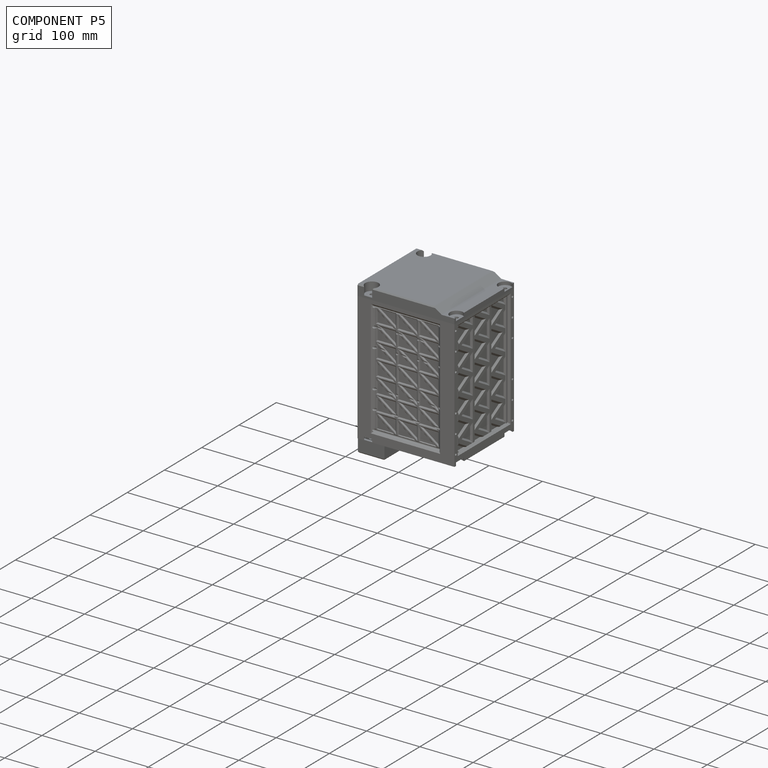
[diagram: component P5 — assembled]
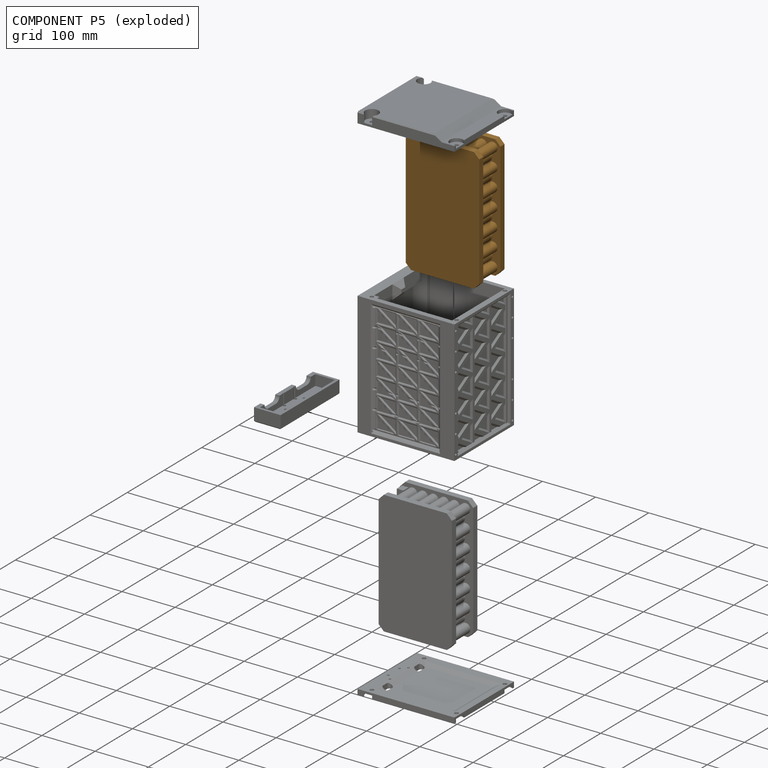
[diagram: component P5 — exploded]
COMPONENT P5 — geometry summary ("SAMSUNG_INR_20R001"; no construction recipe available for this part):
  bounding box: 232.0 x 138.0 x 68.0 mm
  tessellated surface: 42,064 triangles
  volume: 1604706 mm^3 (74% of its bounding box)
  symmetry: 2-fold rotationally symmetric about the x axis; mirror-symmetric across its y mid-plane, z mid-plane
Held by: resting contact with P0 (derived edge); resting contact with P4 (derived edge).
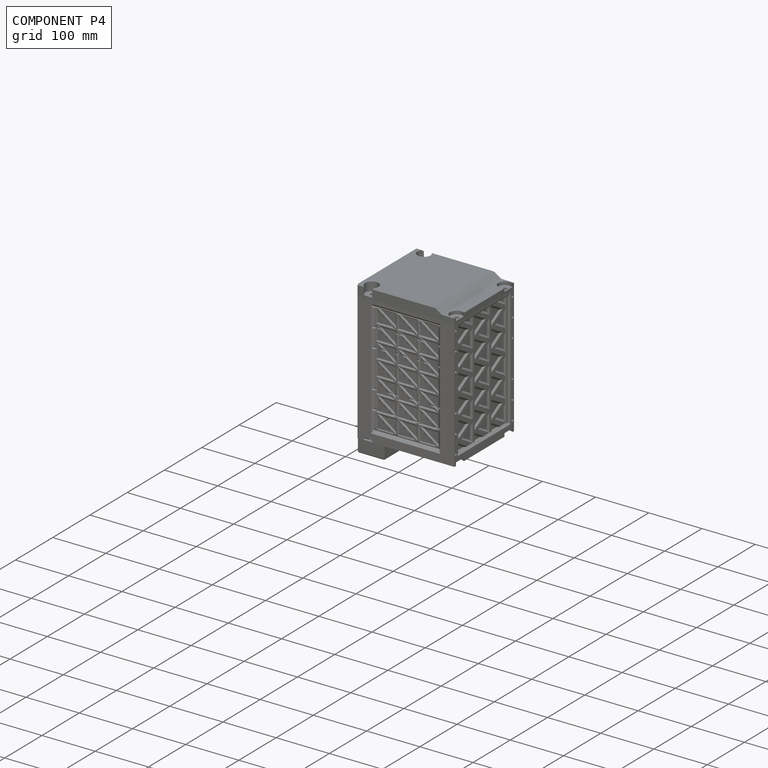
[diagram: component P4 — assembled]
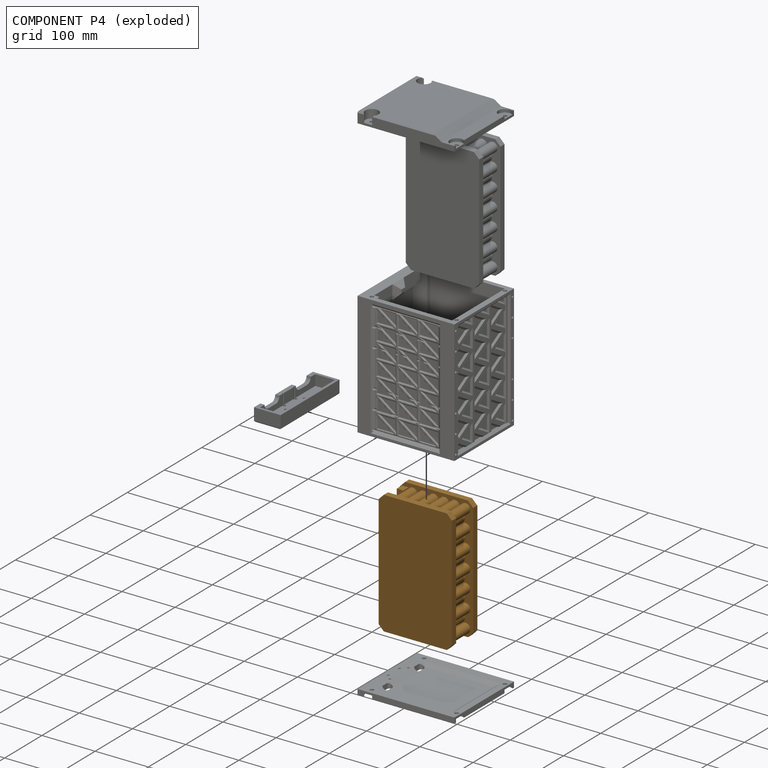
[diagram: component P4 — exploded]
COMPONENT P4 — geometry summary ("SAMSUNG_INR_20R"; no construction recipe available for this part):
  bounding box: 232.0 x 138.0 x 68.0 mm
  tessellated surface: 42,064 triangles
  volume: 1604706 mm^3 (74% of its bounding box)
  symmetry: 2-fold rotationally symmetric about the x axis; mirror-symmetric across its y mid-plane, z mid-plane
Held by: resting contact with P0 (derived edge); resting contact with P2 (derived edge); resting contact with P5 (derived edge).
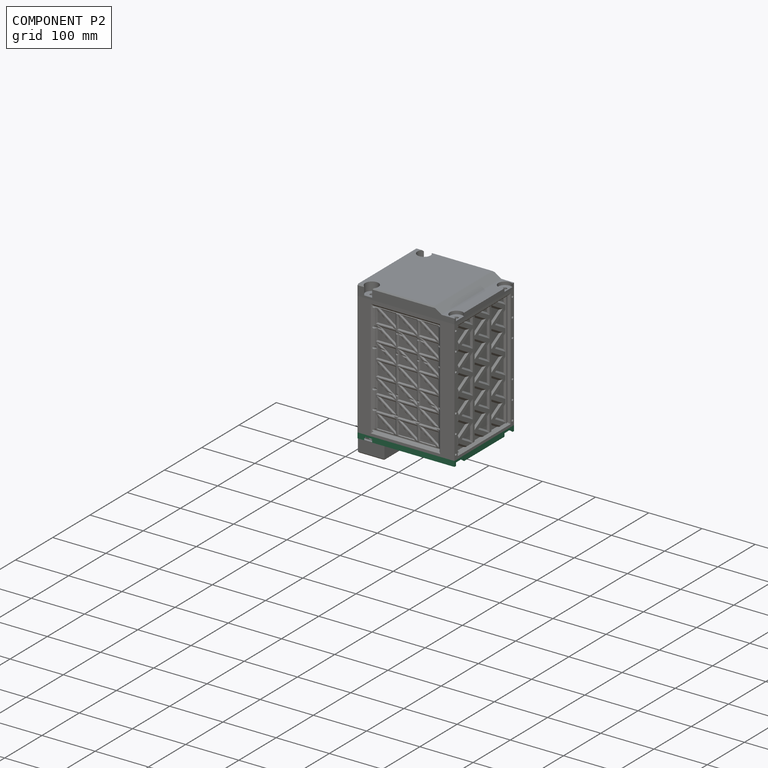
[diagram: component P2 — assembled]
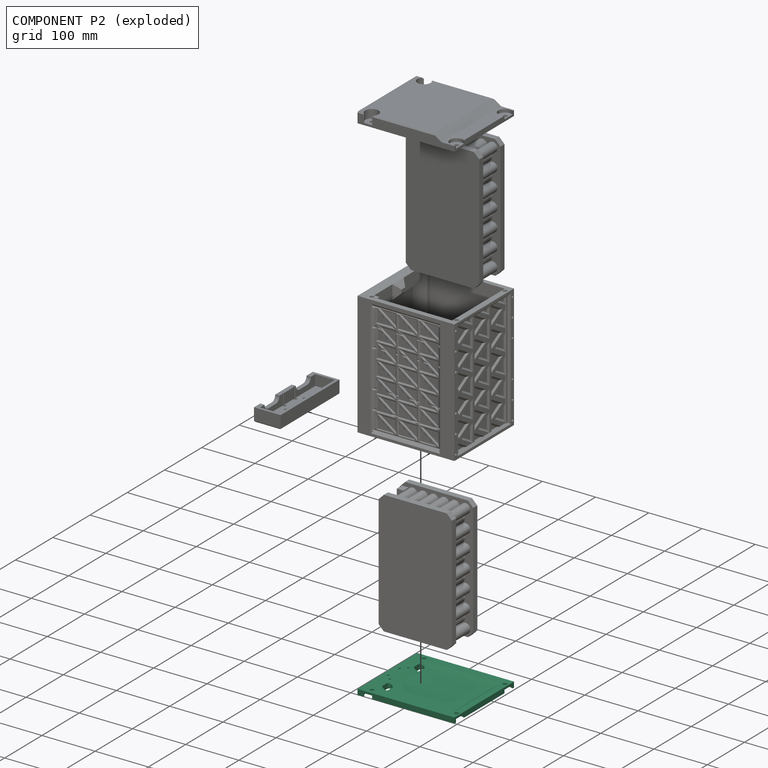
[diagram: component P2 — exploded]
COMPONENT P2 — recipe-attached ("EndLid002", modeled in this document).
Held by: resting contact with P0 (derived edge); resting contact with P3 (derived edge); resting contact with P4 (derived edge).
Construction recipe (the document's own serialized feature program — sketch geometry with constraints, then the solid features built on it; lengths are millimeters unless a unit is written):

FEATURE [Sketcher::SketchObject] Sketch014
  ArcFitTolerance = 1e-06
  AttachmentSupport = -> [XY_Plane010]
  FullyConstrained = false
  MakeInternals = false
  MapMode = 5
  sketch-geometry (4):
    g0: LineSegment StartX=0 StartY=2 StartZ=0 EndX=182 EndY=2 EndZ=0
    g1: LineSegment StartX=182 StartY=2 StartZ=0 EndX=182 EndY=162 EndZ=0
    g2: LineSegment StartX=182 StartY=162 StartZ=0 EndX=0 EndY=162 EndZ=0
    g3: LineSegment StartX=0 StartY=162 StartZ=0 EndX=0 EndY=2 EndZ=0
  constraints (8):
    c: Coincident(g0,g1)
    c: Coincident(g1,g2)
    c: Coincident(g2,g3)
    c: Coincident(g3,g0)
    c: Horizontal(g0)
    c: Horizontal(g2)
    c: Vertical(g1)
    c: Vertical(g3)
FEATURE [PartDesign::Pad] Pad007
  Direction = (0,0,1)
  Length = 10
  Length2 = 10
  Profile = -> Sketch014
  ReferenceAxis = -> Sketch014 [N_Axis]
  Refine = true
  Reversed = true
  Suppressed = false
  Type = 0
FEATURE [Sketcher::SketchObject] Sketch016
  ArcFitTolerance = 1e-06
  AttachmentOffset = pos=(0,0,-20) rot=(0,0,1;0rad)
  AttachmentSupport = -> [XY_Plane010]
  FullyConstrained = false
  MakeInternals = false
  MapMode = 5
  Placement = pos=(0,0,-20) rot=(0,0,1;0rad)
  sketch-geometry (4):
    g0: Circle CenterX=20 CenterY=152 CenterZ=0 NormalX=0 NormalY=0 NormalZ=1 AngleXU=0 Radius=2.38649
    g1: Circle CenterX=20 CenterY=12 CenterZ=0 NormalX=0 NormalY=0 NormalZ=1 AngleXU=0 Radius=3.41984
    g2: Circle CenterX=175.5 CenterY=147 CenterZ=0 NormalX=0 NormalY=0 NormalZ=1 AngleXU=0 Radius=1.76253
    g3: Circle CenterX=175.5 CenterY=17 CenterZ=0 NormalX=0 NormalY=0 NormalZ=1 AngleXU=0 Radius=2.37061
FEATURE [PartDesign::Hole] Hole006
  BaseFeature = -> Pad007
  CustomThreadClearance = 0
  Depth = 52
  DepthType = 0
  Diameter = 7.1
  DrillForDepth = false
  DrillPoint = 1
  DrillPointAngle = 118
  HoleCutCountersinkAngle = 90
  HoleCutCustomValues = false
  HoleCutDepth = 16
  HoleCutDiameter = 25
  HoleCutType = 1
  ModelThread = false
  Profile = -> Sketch016
  Refine = true
  Reversed = true
  Suppressed = false
  Tapered = false
  TaperedAngle = 90
  ThreadClass = 0
  ThreadDepth = 52
  ThreadDepthType = 0
  ThreadDirection = 0
  ThreadFit = 0
  ThreadSize = 9
  ThreadType = 3
  Threaded = false
  UseCustomThreadClearance = false
FEATURE [Sketcher::SketchObject] Sketch017
  ArcFitTolerance = 1e-06
  AttachmentSupport = -> [XY_Plane010]
  FullyConstrained = false
  MakeInternals = false
  MapMode = 5
  sketch-geometry (8):
    g0: ArcOfCircle CenterX=30 CenterY=130 CenterZ=0 NormalX=0 NormalY=0 NormalZ=1 AngleXU=0 Radius=5 StartAngle=2.6e-15 EndAngle=3.14159
    g1: ArcOfCircle CenterX=30 CenterY=120 CenterZ=0 NormalX=0 NormalY=0 NormalZ=1 AngleXU=0 Radius=5 StartAngle=3.14159 EndAngle=6.28319
    g2: LineSegment StartX=35 StartY=130 StartZ=0 EndX=35 EndY=120 EndZ=0
    g3: LineSegment StartX=25 StartY=130 StartZ=0 EndX=25 EndY=120 EndZ=0
    g4: ArcOfCircle CenterX=30 CenterY=45 CenterZ=0 NormalX=0 NormalY=0 NormalZ=1 AngleXU=0 Radius=5 StartAngle=1e-16 EndAngle=3.14159
    g5: ArcOfCircle CenterX=30 CenterY=35 CenterZ=0 NormalX=0 NormalY=0 NormalZ=1 AngleXU=0 Radius=5 StartAngle=3.14159 EndAngle=6.28319
    g6: LineSegment StartX=35 StartY=45 StartZ=0 EndX=35 EndY=35 EndZ=0
    g7: LineSegment StartX=25 StartY=45 StartZ=0 EndX=25 EndY=35 EndZ=0
  constraints (12):
    c: Tangent(g0,g2) = 1.5708
    c: Tangent(g0,g3) = -1.5708
    c: Tangent(g1,g2) = 1.5708
    c: Tangent(g1,g3) = -1.5708
    c: Equal(g0,g1)
    c: Vertical(g3)
    c: Tangent(g4,g6) = 1.5708
    c: Tangent(g4,g7) = -1.5708
    c: Tangent(g5,g6) = 1.5708
    c: Tangent(g5,g7) = -1.5708
    c: Equal(g4,g5)
    c: Vertical(g7)
FEATURE [PartDesign::Pocket] Pocket002
  BaseFeature = -> Hole006
  Direction = (0,0,-1)
  Length = 29
  Length2 = 5
  Profile = -> Sketch017
  ReferenceAxis = -> Sketch017 [N_Axis]
  Refine = true
  Suppressed = false
  Type = 0
FEATURE [Sketcher::SketchObject] Sketch018
  ArcFitTolerance = 1e-06
  AttachmentSupport = -> [XY_Plane010]
  FullyConstrained = false
  MakeInternals = false
  MapMode = 5
  sketch-geometry (4):
    g0: LineSegment StartX=25 StartY=145 StartZ=0 EndX=25 EndY=20 EndZ=0
    g1: LineSegment StartX=25 StartY=20 StartZ=0 EndX=170 EndY=20 EndZ=0
    g2: LineSegment StartX=170 StartY=20 StartZ=0 EndX=170 EndY=145 EndZ=0
    g3: LineSegment StartX=170 StartY=145 StartZ=0 EndX=25 EndY=145 EndZ=0
  constraints (8):
    c: Coincident(g0,g1)
    c: Coincident(g1,g2)
    c: Coincident(g2,g3)
    c: Coincident(g3,g0)
    c: Vertical(g0)
    c: Vertical(g2)
    c: Horizontal(g1)
    c: Horizontal(g3)
FEATURE [PartDesign::Pocket] Pocket003
  BaseFeature = -> Pocket002
  Direction = (0,0,-1)
  Length = 5
  Length2 = 5
  Profile = -> Sketch018
  ReferenceAxis = -> Sketch018 [N_Axis]
  Refine = true
  Suppressed = false
  TaperAngle = -60
  Type = 0
FEATURE [Sketcher::SketchObject] Sketch019
  ArcFitTolerance = 1e-06
  AttachmentOffset = pos=(0,0,-20) rot=(0,0,1;0rad)
  AttachmentSupport = -> [XY_Plane010]
  FullyConstrained = false
  MakeInternals = false
  MapMode = 5
  Placement = pos=(0,0,-20) rot=(0,0,1;0rad)
  sketch-geometry (4):
    g0: Circle CenterX=20 CenterY=60 CenterZ=0 NormalX=0 NormalY=0 NormalZ=1 AngleXU=0 Radius=1
    g1: Circle CenterX=20 CenterY=110 CenterZ=0 NormalX=0 NormalY=0 NormalZ=1 AngleXU=0 Radius=1
    g2: Circle CenterX=10 CenterY=100 CenterZ=0 NormalX=0 NormalY=0 NormalZ=1 AngleXU=0 Radius=1
    g3: Circle CenterX=10 CenterY=70 CenterZ=0 NormalX=0 NormalY=0 NormalZ=1 AngleXU=0 Radius=1
FEATURE [PartDesign::Hole] Hole007
  BaseFeature = -> Pocket003
  CustomThreadClearance = 0
  Depth = 25
  DepthType = 0
  Diameter = 4.2
  DrillForDepth = false
  DrillPoint = 1
  DrillPointAngle = 118
  HoleCutCountersinkAngle = 90
  HoleCutCustomValues = false
  HoleCutDepth = 0
  HoleCutDiameter = 6.1
  HoleCutType = 0
  ModelThread = false
  Profile = -> Sketch019
  Refine = true
  Reversed = true
  Suppressed = false
  Tapered = false
  TaperedAngle = 90
  ThreadClass = 0
  ThreadDepth = 25
  ThreadDepthType = 0
  ThreadDirection = 0
  ThreadFit = 0
  ThreadSize = 13
  ThreadType = 1
  Threaded = true
  UseCustomThreadClearance = false
FEATURE [PartDesign::Body] Body005  label="EndLid002"
  AllowCompound = false
  Group = -> [Sketch014,Pad007,Sketch016,Hole006,Sketch017,Pocket002,Sketch018,Pocket003,Sketch019,Hole007]
  Origin = -> Origin010
  Placement = pos=(-80,-12,-116) rot=(0,0,1;0rad)
  Tip = -> Hole007
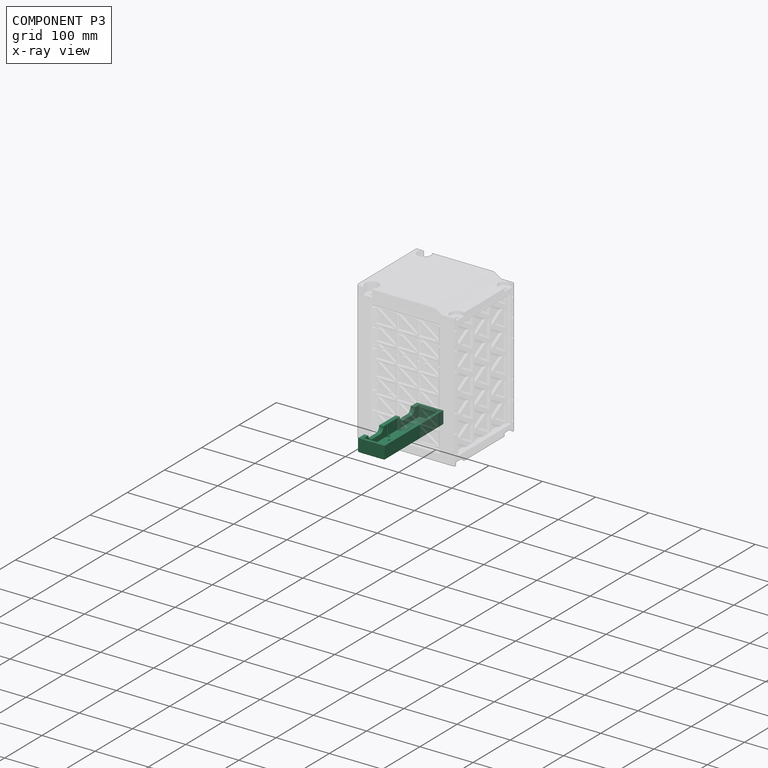
[diagram: component P3 — x-ray view]
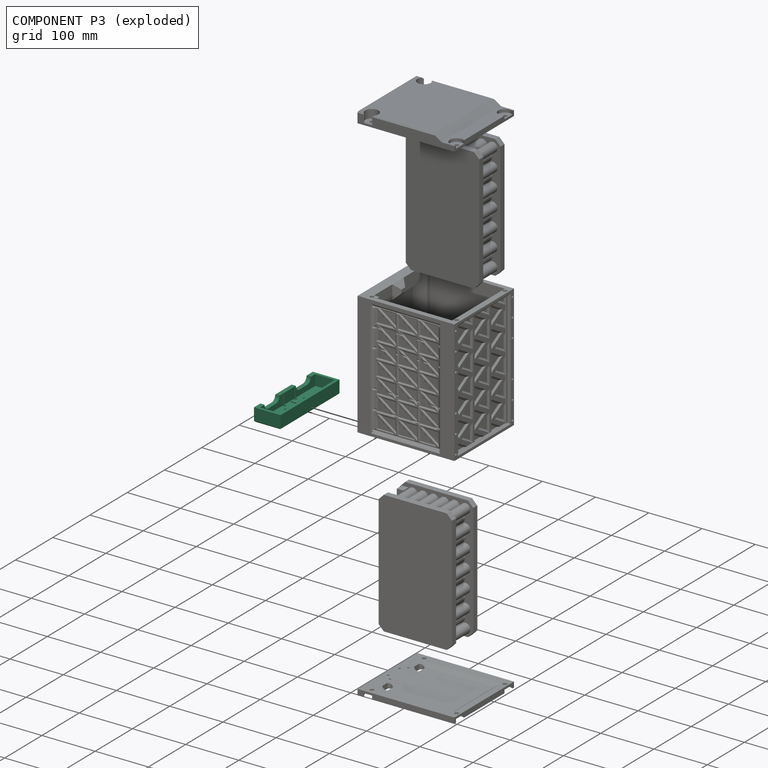
[diagram: component P3 — exploded]
COMPONENT P3 — recipe-attached ("WireEnclosure", modeled in this document).
Held by: resting contact with P2 (derived edge).
Construction recipe (the document's own serialized feature program — sketch geometry with constraints, then the solid features built on it; lengths are millimeters unless a unit is written):

FEATURE [Sketcher::SketchObject] Sketch021
  ArcFitTolerance = 1e-06
  AttachmentSupport = -> [XY_Plane011]
  FullyConstrained = false
  MakeInternals = false
  MapMode = 5
  sketch-geometry (4):
    g0: LineSegment StartX=50 StartY=3 StartZ=0 EndX=50 EndY=161 EndZ=0
    g1: LineSegment StartX=50 StartY=161 StartZ=0 EndX=0 EndY=161 EndZ=0
    g2: LineSegment StartX=0 StartY=161 StartZ=0 EndX=0 EndY=3 EndZ=0
    g3: LineSegment StartX=0 StartY=3 StartZ=0 EndX=50 EndY=3 EndZ=0
  constraints (8):
    c: Coincident(g0,g1)
    c: Coincident(g1,g2)
    c: Coincident(g2,g3)
    c: Coincident(g3,g0)
    c: Vertical(g0)
    c: Vertical(g2)
    c: Horizontal(g1)
    c: Horizontal(g3)
FEATURE [PartDesign::Pad] Pad008
  Direction = (0,0,1)
  Length = 25
  Length2 = 10
  Profile = -> Sketch021
  ReferenceAxis = -> Sketch021 [N_Axis]
  Refine = true
  Reversed = true
  Suppressed = false
  Type = 0
FEATURE [Sketcher::SketchObject] Sketch022
  ArcFitTolerance = 1e-06
  AttachmentSupport = -> [XY_Plane011]
  FullyConstrained = false
  MakeInternals = false
  MapMode = 5
  sketch-geometry (4):
    g0: LineSegment StartX=45 StartY=8 StartZ=0 EndX=45 EndY=156 EndZ=0
    g1: LineSegment StartX=45 StartY=156 StartZ=0 EndX=8 EndY=156 EndZ=0
    g2: LineSegment StartX=8 StartY=156 StartZ=0 EndX=8 EndY=8 EndZ=0
    g3: LineSegment StartX=8 StartY=8 StartZ=0 EndX=45 EndY=8 EndZ=0
  constraints (8):
    c: Coincident(g0,g1)
    c: Coincident(g1,g2)
    c: Coincident(g2,g3)
    c: Coincident(g3,g0)
    c: Vertical(g0)
    c: Vertical(g2)
    c: Horizontal(g1)
    c: Horizontal(g3)
FEATURE [PartDesign::Pocket] Pocket005
  BaseFeature = -> Pad008
  Direction = (0,0,-1)
  Length = 20
  Length2 = 5
  Profile = -> Sketch022
  ReferenceAxis = -> Sketch022 [N_Axis]
  Refine = true
  Suppressed = false
  Type = 0
FEATURE [Sketcher::SketchObject] Sketch023
  ArcFitTolerance = 1e-06
  AttachmentSupport = -> [YZ_Plane011]
  FullyConstrained = false
  MakeInternals = false
  MapMode = 5
  Placement = pos=(0,0,0) rot=(0.57735,0.57735,0.57735;2.0944rad)
  sketch-geometry (8):
    g0: ArcOfCircle CenterX=30 CenterY=-6.679e-13 CenterZ=0 NormalX=0 NormalY=0 NormalZ=1 AngleXU=0 Radius=10 StartAngle=1.5708 EndAngle=4.71239
    g1: ArcOfCircle CenterX=50 CenterY=-6.679e-13 CenterZ=0 NormalX=0 NormalY=0 NormalZ=1 AngleXU=0 Radius=10 StartAngle=4.71239 EndAngle=7.85398
    g2: LineSegment StartX=30 StartY=10 StartZ=0 EndX=50 EndY=10 EndZ=0
    g3: LineSegment StartX=30 StartY=-10 StartZ=0 EndX=50 EndY=-10 EndZ=0
    g4: ArcOfCircle CenterX=114 CenterY=-3.331e-13 CenterZ=0 NormalX=0 NormalY=0 NormalZ=1 AngleXU=0 Radius=10 StartAngle=1.5708 EndAngle=4.71239
    g5: ArcOfCircle CenterX=134 CenterY=-3.331e-13 CenterZ=0 NormalX=0 NormalY=0 NormalZ=1 AngleXU=0 Radius=10 StartAngle=4.71239 EndAngle=7.85398
    g6: LineSegment StartX=114 StartY=10 StartZ=0 EndX=134 EndY=10 EndZ=0
    g7: LineSegment StartX=114 StartY=-10 StartZ=0 EndX=134 EndY=-10 EndZ=0
  constraints (12):
    c: Tangent(g0,g2) = 1.5708
    c: Tangent(g0,g3) = -1.5708
    c: Tangent(g1,g2) = 1.5708
    c: Tangent(g1,g3) = -1.5708
    c: Equal(g0,g1)
    c: Horizontal(g3)
    c: Tangent(g4,g6) = 1.5708
    c: Tangent(g4,g7) = -1.5708
    c: Tangent(g5,g6) = 1.5708
    c: Tangent(g5,g7) = -1.5708
    c: Equal(g4,g5)
    c: Horizontal(g7)
FEATURE [PartDesign::Pocket] Pocket006
  BaseFeature = -> Pocket005
  Direction = (-1,0,0)
  Length = 16
  Length2 = 5
  Profile = -> Sketch023
  ReferenceAxis = -> Sketch023 [N_Axis]
  Refine = true
  Reversed = true
  Suppressed = false
  Type = 0
FEATURE [Sketcher::SketchObject] Sketch024
  ArcFitTolerance = 1e-06
  AttachmentOffset = pos=(0,0,-25) rot=(0,0,1;0rad)
  AttachmentSupport = -> [XY_Plane011]
  FullyConstrained = false
  MakeInternals = false
  MapMode = 5
  Placement = pos=(0,0,-25) rot=(0,0,1;0rad)
  sketch-geometry (4):
    g0: Circle CenterX=10 CenterY=100 CenterZ=0 NormalX=0 NormalY=0 NormalZ=1 AngleXU=0 Radius=3.3694
    g1: Circle CenterX=20 CenterY=110 CenterZ=0 NormalX=0 NormalY=0 NormalZ=1 AngleXU=0 Radius=3.15096
    g2: Circle CenterX=10 CenterY=70 CenterZ=0 NormalX=0 NormalY=0 NormalZ=1 AngleXU=0 Radius=3.07208
    g3: Circle CenterX=20 CenterY=60 CenterZ=0 NormalX=0 NormalY=0 NormalZ=1 AngleXU=0 Radius=3.19775
FEATURE [PartDesign::Hole] Hole008
  BaseFeature = -> Pocket006
  CustomThreadClearance = 0
  Depth = 25
  DepthType = 0
  Diameter = 5.5
  DrillForDepth = false
  DrillPoint = 1
  DrillPointAngle = 118
  HoleCutCountersinkAngle = 90
  HoleCutCustomValues = false
  HoleCutDepth = 0
  HoleCutDiameter = 6.1
  HoleCutType = 0
  ModelThread = false
  Profile = -> Sketch024
  Refine = true
  Reversed = true
  Suppressed = false
  Tapered = false
  TaperedAngle = 90
  ThreadClass = 0
  ThreadDepth = 25
  ThreadDepthType = 0
  ThreadDirection = 0
  ThreadFit = 0
  ThreadSize = 13
  ThreadType = 1
  Threaded = false
  UseCustomThreadClearance = false
FEATURE [PartDesign::Chamfer] Chamfer002
  Angle = 45
  Base = -> Hole008 [Edge7,Edge20,Edge10,Edge4]
  BaseFeature = -> Hole008
  ChamferType = 0
  FlipDirection = false
  Refine = true
  Size = 2
  Size2 = 1
  SupportTransform = false
  Suppressed = false
  UseAllEdges = false
FEATURE [PartDesign::Body] Body006  label="WireEnclosure"
  AllowCompound = false
  Group = -> [Sketch021,Pad008,Sketch022,Pocket005,Sketch023,Pocket006,Sketch024,Hole008,Chamfer002]
  Origin = -> Origin011
  Placement = pos=(-80,-12,-126) rot=(0,0,1;0rad)
  Tip = -> Chamfer002
